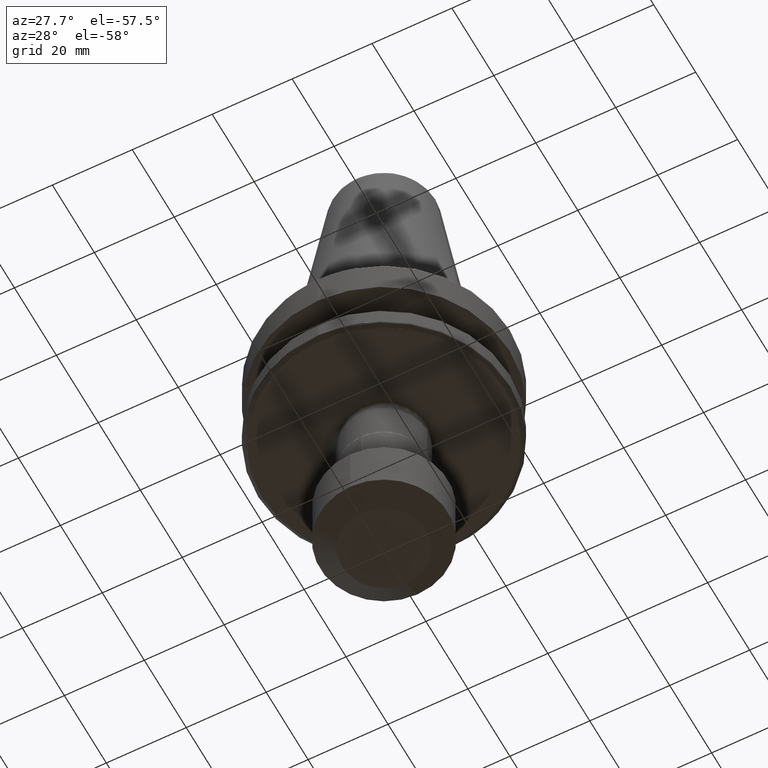
[diagram: clean part render]
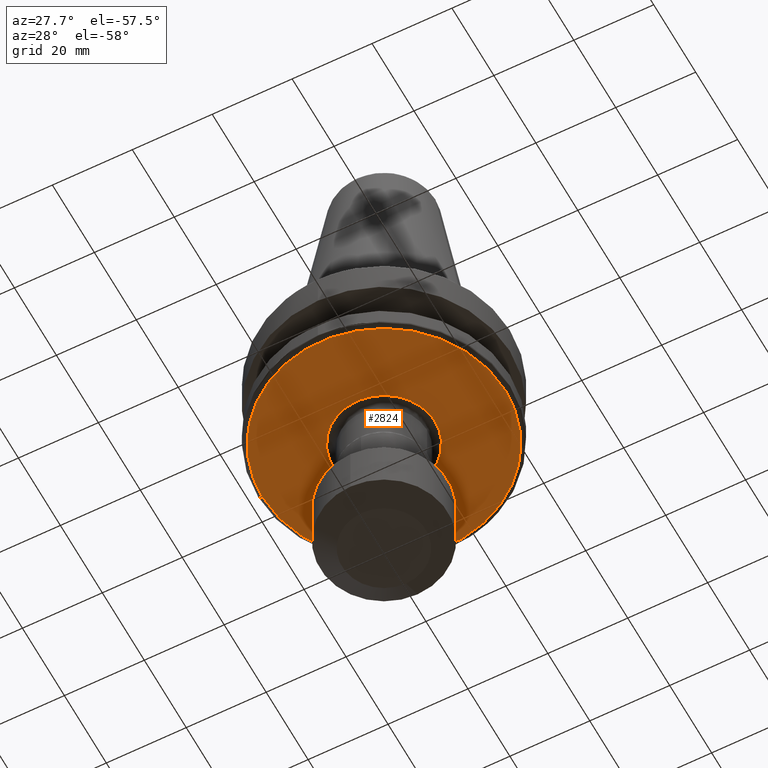
[diagram: same view with one face highlighted and labeled with its STEP entity id]
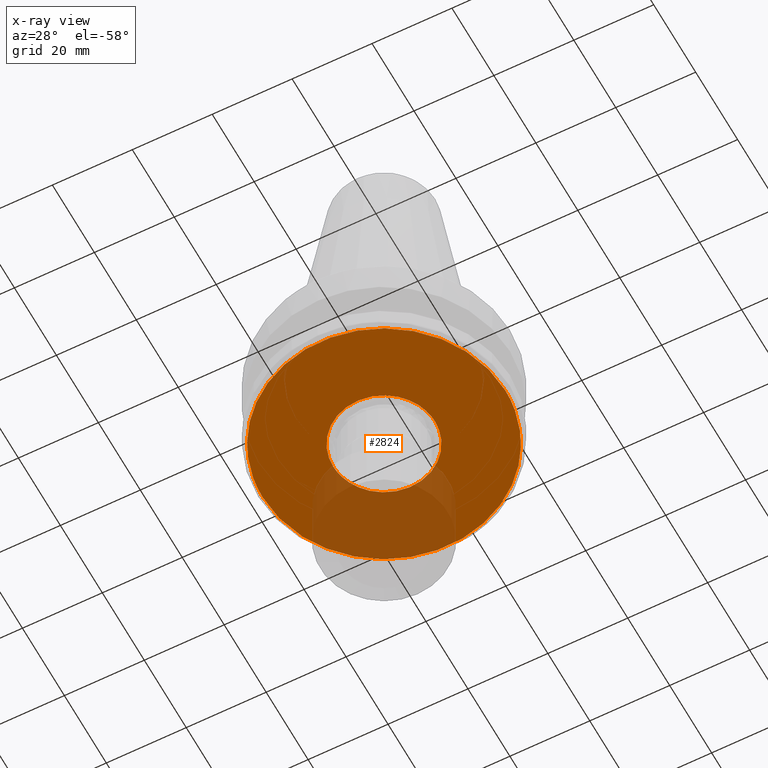
[diagram: x-ray of the same camera — body ghosted, the highlighted face saturated]
A machine part, auxiliary view. The second image highlights one B-rep face of the part: STEP entity #2824.
The next image is the same camera in x-ray: the body ghosted, the highlighted face saturated — about 25% of this face is hidden behind the body in this view.
In plain terms, the highlighted planar face has unit normal (0, 0, -1).
Its self-contained STEP definition (entity closure, byte-faithful):
#1 = CARTESIAN_POINT ( 'NONE',  ( -12.32977599660492100, 3.262242557286067600, -26.99999999999999300 ) ) ;
#6 = CARTESIAN_POINT ( 'NONE',  ( -12.55227789856859900, 2.246864816764769100, -26.99999999999998900 ) ) ;
#9 = CARTESIAN_POINT ( 'NONE',  ( -7.314865708562977400, -29.43924996358139300, -27.00000000000000400 ) ) ;
#16 = CARTESIAN_POINT ( 'NONE',  ( -30.06745157541815800, 4.014863191671530300, -27.00000000000000000 ) ) ;
#17 = CARTESIAN_POINT ( 'NONE',  ( -14.00798787767455200, -26.90636775184092500, -27.00000000000000000 ) ) ;
#23 = CARTESIAN_POINT ( 'NONE',  ( -27.89701390752557600, 11.92717983265423100, -26.99999999999999300 ) ) ;
#24 = CARTESIAN_POINT ( 'NONE',  ( -19.19134097743529600, -23.49476566299169300, -27.00000000000000000 ) ) ;
#26 = CARTESIAN_POINT ( 'NONE',  ( -12.64182355633824000, -1.657361109294325500, -27.00000000000000700 ) ) ;
#31 = CARTESIAN_POINT ( 'NONE',  ( -25.98422421869813400, 15.65220437513010400, -27.00000000000000400 ) ) ;
#32 = CARTESIAN_POINT ( 'NONE',  ( -22.25632787285158500, -20.61134462702642300, -27.00000000000000000 ) ) ;
#34 = CARTESIAN_POINT ( 'NONE',  ( -11.96545752996769000, -4.429517240855598300, -26.99999999999998900 ) ) ;
#39 = CARTESIAN_POINT ( 'NONE',  ( -22.88540125800991700, 19.91349571467543800, -27.00000000000000000 ) ) ;
#40 = CARTESIAN_POINT ( 'NONE',  ( -25.81104396033812500, -15.93634838799716600, -27.00000000000000700 ) ) ;
#42 = CARTESIAN_POINT ( 'NONE',  ( -4.376057882890410000, 11.97567682924114700, -27.00000000000000000 ) ) ;
#43 = CARTESIAN_POINT ( 'NONE',  ( -10.25292004097483700, -7.578998863682524100, -27.00000000000000400 ) ) ;
#46 = CARTESIAN_POINT ( 'NONE',  ( -4.559783513164583200, 11.90692341074806200, -27.00000000000000000 ) ) ;
#50 = CARTESIAN_POINT ( 'NONE',  ( -19.97247930315361200, 22.83138023056808700, -27.00000000000000000 ) ) ;
#51 = CARTESIAN_POINT ( 'NONE',  ( -27.64383232676977500, -12.51919696687722100, -27.00000000000000400 ) ) ;
#52 = CARTESIAN_POINT ( 'NONE',  ( -7.929838823613415000, -9.988963817548519600, -27.00000000000000700 ) ) ;
#60 = CARTESIAN_POINT ( 'NONE',  ( -14.53295277555866800, 26.62647715423845400, -26.99999999999998600 ) ) ;
#61 = CARTESIAN_POINT ( 'NONE',  ( -29.97105914676813800, -4.687334143257679400, -27.00000000000000000 ) ) ;
#63 = CARTESIAN_POINT ( 'NONE',  ( -5.030186304927819500, -11.71699770991051700, -27.00000000000000700 ) ) ;
#69 = CARTESIAN_POINT ( 'NONE',  ( -7.989465169317333500, 29.26398986221233000, -27.00000000000000400 ) ) ;
#71 = CARTESIAN_POINT ( 'NONE',  ( -1.060798828813558400, -12.71690313664970900, -27.00000000000000000 ) ) ;
#77 = FACE_OUTER_BOUND ( 'NONE', #1599, .T. ) ;
#78 = CARTESIAN_POINT ( 'NONE',  ( 1.577747754947140600, 30.30482653326176000, -27.00000000000000000 ) ) ;
#82 = CARTESIAN_POINT ( 'NONE',  ( 3.763436938339757900, -12.18676905857086900, -26.99999999999999600 ) ) ;
#84 = CARTESIAN_POINT ( 'NONE',  ( -12.61787998400996500, 1.831498131262046600, -26.99999999999999600 ) ) ;
#86 = CARTESIAN_POINT ( 'NONE',  ( -10.19241349833950300, 7.660114474155569100, -26.99999999999998900 ) ) ;
#90 = CARTESIAN_POINT ( 'NONE',  ( 8.954237609605046400, 28.99416497498624100, -26.99999999999999300 ) ) ;
#91 = CARTESIAN_POINT ( 'NONE',  ( 6.901906106309899900, -10.72160800509111500, -27.00000000000000000 ) ) ;
#97 = CARTESIAN_POINT ( 'NONE',  ( 14.79203558219175500, 26.48981554119946200, -27.00000000000000400 ) ) ;
#102 = CARTESIAN_POINT ( 'NONE',  ( 9.715092270122603700, -8.262542522046258500, -27.00000000000000700 ) ) ;
#105 = FACE_BOUND ( 'NONE', #1591, .T. ) ;
#107 = CARTESIAN_POINT ( 'NONE',  ( 19.83908021210594400, 22.94739003378545300, -27.00000000000000700 ) ) ;
#109 = CARTESIAN_POINT ( 'NONE',  ( 11.43841234300686200, -5.632526597064148700, -26.99999999999999300 ) ) ;
#114 = CARTESIAN_POINT ( 'NONE',  ( 23.71392031506312400, 18.91927227091810700, -27.00000000000000400 ) ) ;
#117 = CARTESIAN_POINT ( 'NONE',  ( 12.44675401268814200, -2.796734209976687400, -26.99999999999999300 ) ) ;
#128 = CARTESIAN_POINT ( 'NONE',  ( 25.90851682547564400, 15.77720567674849600, -27.00000000000000000 ) ) ;
#134 = CARTESIAN_POINT ( 'NONE',  ( 28.90261560424337600, 9.213713054814931500, -26.99999999999998200 ) ) ;
#143 = CARTESIAN_POINT ( 'NONE',  ( 0.5308840484537696900, 12.74997709818056200, -27.00000000000000000 ) ) ;
#145 = CARTESIAN_POINT ( 'NONE',  ( 30.05468978818245800, 4.109405016325622400, -27.00000000000000000 ) ) ;
#148 = CARTESIAN_POINT ( 'NONE',  ( 30.06866015639782600, -4.005796829339312900, -27.00000000000000700 ) ) ;
#150 = CARTESIAN_POINT ( 'NONE',  ( -12.59730222495517000, 1.970236039819381900, -27.00000000000000000 ) ) ;
#160 = CARTESIAN_POINT ( 'NONE',  ( 28.46761302127731200, -10.53892102973902900, -26.99999999999999300 ) ) ;
#170 = CARTESIAN_POINT ( 'NONE',  ( 26.02943172749451500, -15.57707268833204500, -27.00000000000000400 ) ) ;
#177 = CARTESIAN_POINT ( 'NONE',  ( 23.47453924231322700, -19.22467896263098900, -27.00000000000000700 ) ) ;
#179 = CARTESIAN_POINT ( 'NONE',  ( -8.225821527503063300, 9.741893564711272500, -27.00000000000000000 ) ) ;
#187 = CARTESIAN_POINT ( 'NONE',  ( 19.99695510746214900, -22.80994345806930900, -27.00000000000000700 ) ) ;
#192 = CARTESIAN_POINT ( 'NONE',  ( 5.030186304933662800, 11.71699770990740000, -27.00000000000000700 ) ) ;
#196 = CARTESIAN_POINT ( 'NONE',  ( 14.72570799564403600, -26.52097213266525300, -27.00000000000000000 ) ) ;
#200 = CARTESIAN_POINT ( 'NONE',  ( 12.63950962174223700, 1.674920348349479200, -26.99999999999999600 ) ) ;
#206 = CARTESIAN_POINT ( 'NONE',  ( 8.509475416675760700, -29.11919875571356500, -27.00000000000000000 ) ) ;
#210 = CARTESIAN_POINT ( 'NONE',  ( 11.72561000113571200, 5.013064896790378800, -26.99999999999999300 ) ) ;
#214 = CARTESIAN_POINT ( 'NONE',  ( -9.715092270126247000, 8.262542522041364600, -26.99999999999998900 ) ) ;
#220 = CARTESIAN_POINT ( 'NONE',  ( -0.6317819115075545800, -30.33432603010909300, -26.99999999999999300 ) ) ;
#222 = CARTESIAN_POINT ( 'NONE',  ( -12.44675401268768100, 2.796734209978307500, -27.00000000000000000 ) ) ;
#227 = CARTESIAN_POINT ( 'NONE',  ( -30.33431456895414200, 0.0000000000000000000, -27.00000000001087500 ) ) ;
#228 = CARTESIAN_POINT ( 'NONE',  ( -8.065230255926891800, -29.24900761299818100, -26.99999999999999600 ) ) ;
#238 = CARTESIAN_POINT ( 'NONE',  ( -29.77054002068192800, 5.908407303601480400, -27.00000000000000400 ) ) ;
#239 = CARTESIAN_POINT ( 'NONE',  ( -14.21033856243216100, -26.80004120175012600, -27.00000000000000700 ) ) ;
#245 = CARTESIAN_POINT ( 'NONE',  ( -27.42994211300608100, 12.95336298930373600, -26.99999999999999300 ) ) ;
#246 = CARTESIAN_POINT ( 'NONE',  ( -19.75880468303768500, -23.01671043274862400, -26.99999999999999600 ) ) ;
#248 = CARTESIAN_POINT ( 'NONE',  ( -12.63849760132270300, -1.682548216561540200, -27.00000000000000400 ) ) ;
#256 = CARTESIAN_POINT ( 'NONE',  ( 6.748126415391675800, 10.82274688855738800, -27.00000000000000700 ) ) ;
#258 = CARTESIAN_POINT ( 'NONE',  ( -25.93968945698734500, 15.72590437763368100, -27.00000000000000700 ) ) ;
#259 = CARTESIAN_POINT ( 'NONE',  ( -23.14263354255662400, -19.62296503528905200, -27.00000000000000700 ) ) ;
#260 = CARTESIAN_POINT ( 'NONE',  ( -11.59627811815114700, -5.301263511727810900, -26.99999999999998600 ) ) ;
#264 = CARTESIAN_POINT ( 'NONE',  ( -22.43177005379728000, 20.42042119967143100, -26.99999999999999300 ) ) ;
#265 = CARTESIAN_POINT ( 'NONE',  ( -25.89161949666177900, -15.80492250809890600, -27.00000000000000000 ) ) ;
#267 = CARTESIAN_POINT ( 'NONE',  ( -10.21516810748599000, -7.629743058841511600, -26.99999999999999300 ) ) ;
#273 = CARTESIAN_POINT ( 'NONE',  ( -18.86604382632783200, 23.76561622384933500, -26.99999999999999600 ) ) ;
#274 = CARTESIAN_POINT ( 'NONE',  ( -28.66941225225468100, -9.928030280955662000, -26.99999999999999600 ) ) ;
#277 = CARTESIAN_POINT ( 'NONE',  ( -7.454081524845139300, -10.34421016014714600, -26.99999999999999600 ) ) ;
#283 = CARTESIAN_POINT ( 'NONE',  ( -14.34153269953272400, 26.73007095302005000, -26.99999999999999600 ) ) ;
#284 = CARTESIAN_POINT ( 'NONE',  ( -30.04331833585420600, -4.192089910118922600, -26.99999999999999600 ) ) ;
#286 = CARTESIAN_POINT ( 'NONE',  ( -4.736993760894399900, -11.83753961281427700, -26.99999999999999600 ) ) ;
#295 = CARTESIAN_POINT ( 'NONE',  ( -7.616483056162604000, 29.36265820173973800, -27.00000000000000400 ) ) ;
#298 = CARTESIAN_POINT ( 'NONE',  ( 9.503416960203553600, 8.520611400945936600, -26.99999999999999300 ) ) ;
#299 = CARTESIAN_POINT ( 'NONE',  ( 0.2654420242143315500, -12.75001144950159000, -27.00000000000000400 ) ) ;
#305 = CARTESIAN_POINT ( 'NONE',  ( 3.149449800102117600, 30.17080025199756200, -27.00000000000000000 ) ) ;
#309 = CARTESIAN_POINT ( 'NONE',  ( 4.376057882901413600, -11.97567682923659800, -27.00000000000000000 ) ) ;
#313 = CARTESIAN_POINT ( 'NONE',  ( -11.45572298888662200, 5.597233873870412600, -27.00000000000000000 ) ) ;
#315 = CARTESIAN_POINT ( 'NONE',  ( 10.48404356790058100, 28.46572494217410600, -27.00000000000000400 ) ) ;
#318 = CARTESIAN_POINT ( 'NONE',  ( 7.158217609935151800, -10.55112080457702300, -26.99999999999999600 ) ) ;
#328 = CARTESIAN_POINT ( 'NONE',  ( 16.42101489034520500, 25.50828098564695500, -27.00000000000000000 ) ) ;
#330 = CARTESIAN_POINT ( 'NONE',  ( 10.08157849122994100, -7.805760291179501200, -26.99999999999999600 ) ) ;
#336 = CARTESIAN_POINT ( 'NONE',  ( -2.625410106458053500, 12.47747553053547000, -26.99999999999998900 ) ) ;
#337 = CARTESIAN_POINT ( 'NONE',  ( 19.92029392028544900, 22.87692387019318500, -27.00000000000000700 ) ) ;
#339 = CARTESIAN_POINT ( 'NONE',  ( 11.45572298888662200, -5.597233873870412600, -27.00000000000000700 ) ) ;
#344 = CARTESIAN_POINT ( 'NONE',  ( 24.13073339502241100, 18.38166501040785400, -27.00000000000001100 ) ) ;
#351 = CARTESIAN_POINT ( 'NONE',  ( 12.59730222495537300, -1.970236039818666900, -27.00000000000000000 ) ) ;
#356 = CARTESIAN_POINT ( 'NONE',  ( 26.51634769473828600, 14.74575627376442500, -26.99999999999999300 ) ) ;
#357 = CARTESIAN_POINT ( 'NONE',  ( -12.63599280844750600, 1.701251021226191800, -27.00000000000000000 ) ) ;
#366 = CARTESIAN_POINT ( 'NONE',  ( 29.06775511035845100, 8.674176925819834200, -26.99999999999998900 ) ) ;
#368 = CARTESIAN_POINT ( 'NONE',  ( -1.323701459803303700, 12.68179503765681700, -27.00000000000000000 ) ) ;
#369 = CARTESIAN_POINT ( 'NONE',  ( 30.30075891712977700, -1.682853304907961000, -27.00000000000000000 ) ) ;
#373 = CARTESIAN_POINT ( 'NONE',  ( 10.21516810748639900, 7.629743058840864100, -27.00000000000000000 ) ) ;
#377 = CARTESIAN_POINT ( 'NONE',  ( 30.06269572678717900, 4.050319365660559600, -27.00000000000001400 ) ) ;
#380 = CARTESIAN_POINT ( 'NONE',  ( 29.96460452612089000, -4.782885916291442100, -26.99999999999999300 ) ) ;
#387 = CARTESIAN_POINT ( 'NONE',  ( 27.58935865968530300, -12.61273155092417600, -26.99999999999999600 ) ) ;
#397 = CARTESIAN_POINT ( 'NONE',  ( 25.95401150601914300, -15.70225232312775400, -26.99999999999999300 ) ) ;
#402 = CARTESIAN_POINT ( 'NONE',  ( -2.882470304350867700, 12.42059590815242300, -26.99999999999999300 ) ) ;
#409 = CARTESIAN_POINT ( 'NONE',  ( 22.58410214244001300, -20.25236861696162500, -26.99999999999999300 ) ) ;
#412 = CARTESIAN_POINT ( 'NONE',  ( -12.71238937923618900, 1.130996580326635500, -27.00000000000000000 ) ) ;
#421 = CARTESIAN_POINT ( 'NONE',  ( 19.51979269850750500, -23.22646600561542500, -26.99999999999999600 ) ) ;
#433 = CARTESIAN_POINT ( 'NONE',  ( 14.40417093811788100, -26.69636274031201100, -27.00000000000000000 ) ) ;
#437 = CARTESIAN_POINT ( 'NONE',  ( 12.59462538776614900, 2.010226977413950500, -26.99999999999999600 ) ) ;
#444 = CARTESIAN_POINT ( 'NONE',  ( 7.765785046583760100, -29.32352643386734300, -27.00000000000000400 ) ) ;
#447 = CARTESIAN_POINT ( 'NONE',  ( 11.52926014702575400, 5.444469015916532800, -27.00000000000000700 ) ) ;
#448 = CARTESIAN_POINT ( 'NONE',  ( 10.40898676184678000, 7.364365957677327900, -26.99999999999999300 ) ) ;
#453 = CARTESIAN_POINT ( 'NONE',  ( -2.678387280277451300, -30.21875626471113900, -27.00000000000000000 ) ) ;
#455 = CARTESIAN_POINT ( 'NONE',  ( -12.23365243790887500, 3.591706551523592000, -27.00000000000000000 ) ) ;
#465 = CARTESIAN_POINT ( 'NONE',  ( -9.976580335066549000, -28.64972546898616600, -27.00000000000000400 ) ) ;
#476 = CARTESIAN_POINT ( 'NONE',  ( -29.30178970370095500, 7.851153117245299700, -27.00000000000000400 ) ) ;
#477 = CARTESIAN_POINT ( 'NONE',  ( -15.55448809825449700, -26.05439568662755100, -27.00000000000000000 ) ) ;
#486 = CARTESIAN_POINT ( 'NONE',  ( -27.30793454930200100, 13.20789838397924100, -26.99999999999999300 ) ) ;
#487 = CARTESIAN_POINT ( 'NONE',  ( -19.89252192534429800, -22.90107864450404000, -26.99999999999999600 ) ) ;
#490 = CARTESIAN_POINT ( 'NONE',  ( -12.51307230566526300, -2.483229068973258300, -27.00000000000000700 ) ) ;
#497 = CARTESIAN_POINT ( 'NONE',  ( -25.26859551766541400, 16.79569564038579800, -27.00000000000000700 ) ) ;
#498 = CARTESIAN_POINT ( 'NONE',  ( -23.99290541595047400, -18.56180435314944800, -27.00000000000000400 ) ) ;
#500 = CARTESIAN_POINT ( 'NONE',  ( -11.49516315404966300, -5.515848317203623500, -27.00000000000000400 ) ) ;
#505 = CARTESIAN_POINT ( 'NONE',  ( -7.210956384142720700, 10.51513559435146500, -26.99999999999998600 ) ) ;
#507 = CARTESIAN_POINT ( 'NONE',  ( -22.32228039465973900, 20.53989862152639700, -27.00000000000000400 ) ) ;
#508 = CARTESIAN_POINT ( 'NONE',  ( -26.16641375509689700, -15.35279778011593500, -27.00000000000000400 ) ) ;
#509 = CARTESIAN_POINT ( 'NONE',  ( -9.931698145096646600, -8.007766201483640600, -27.00000000000000400 ) ) ;
#516 = CARTESIAN_POINT ( 'NONE',  ( -17.67708122854763900, 24.65211168048978900, -26.99999999999998900 ) ) ;
#517 = CARTESIAN_POINT ( 'NONE',  ( -29.01363841858709900, -8.854384036396439200, -26.99999999999999600 ) ) ;
#519 = CARTESIAN_POINT ( 'NONE',  ( -4.193187282698271000, 12.04198172840952500, -26.99999999999999600 ) ) ;
#520 = CARTESIAN_POINT ( 'NONE',  ( -7.310384583437040900, -10.44626747461959000, -26.99999999999999300 ) ) ;
#524 = CARTESIAN_POINT ( 'NONE',  ( -7.158217609934904000, 10.55112080457774400, -26.99999999999999600 ) ) ;
#527 = CARTESIAN_POINT ( 'NONE',  ( -12.93237356969733300, 27.45111927661605500, -27.00000000000000700 ) ) ;
#528 = CARTESIAN_POINT ( 'NONE',  ( -30.05950157680395000, -4.073955391500646800, -27.00000000000001100 ) ) ;
#529 = CARTESIAN_POINT ( 'NONE',  ( -4.377125792278679500, -11.97793031514609700, -27.00000000000000000 ) ) ;
#535 = CARTESIAN_POINT ( 'NONE',  ( -6.859315343740664900, 29.55527189391064600, -27.00000000000000400 ) ) ;
#539 = CARTESIAN_POINT ( 'NONE',  ( 1.059535312406839400, -12.70660621034599400, -27.00000000000001100 ) ) ;
#545 = CARTESIAN_POINT ( 'NONE',  ( -7.055966075700705900, 10.61977545597380300, -27.00000000000000000 ) ) ;
#548 = CARTESIAN_POINT ( 'NONE',  ( 3.621533451799760600, 30.11776097216621300, -26.99999999999999600 ) ) ;
#553 = CARTESIAN_POINT ( 'NONE',  ( 4.559783513162887700, -11.90692341074864500, -27.00000000000000400 ) ) ;
#560 = CARTESIAN_POINT ( 'NONE',  ( 10.84501639576673400, 28.32952758604733700, -27.00000000000000000 ) ) ;
#564 = CARTESIAN_POINT ( 'NONE',  ( 7.455106844063468700, -10.34604124863696000, -26.99999999999999600 ) ) ;
#572 = CARTESIAN_POINT ( 'NONE',  ( 17.06084698435738600, 25.08201532889678400, -26.99999999999999300 ) ) ;
#576 = CARTESIAN_POINT ( 'NONE',  ( 10.16634897097401000, -7.694674792744164500, -27.00000000000000700 ) ) ;
#582 = CARTESIAN_POINT ( 'NONE',  ( 20.95299813298871100, 21.94674450176455900, -27.00000000000000000 ) ) ;
#585 = CARTESIAN_POINT ( 'NONE',  ( 11.83535525243266500, -4.766251354434490200, -26.99999999999999300 ) ) ;
#593 = CARTESIAN_POINT ( 'NONE',  ( 24.22850819644297700, 18.25242520543470800, -27.00000000000000400 ) ) ;
#596 = CARTESIAN_POINT ( 'NONE',  ( 12.62768526250281400, -1.762023296961996400, -27.00000000000000400 ) ) ;
#603 = CARTESIAN_POINT ( 'NONE',  ( 27.08537981856266800, 13.65930904866499100, -26.99999999999999600 ) ) ;
#613 = CARTESIAN_POINT ( 'NONE',  ( 29.10583706064811700, 8.545234707008008400, -27.00000000000000400 ) ) ;
#625 = CARTESIAN_POINT ( 'NONE',  ( 30.24483282093721900, 2.690588715207872900, -27.00000000000000400 ) ) ;
#629 = CARTESIAN_POINT ( 'NONE',  ( 29.47033861247848200, -7.206134666321441200, -27.00000000000000400 ) ) ;
#637 = CARTESIAN_POINT ( 'NONE',  ( 27.34883660898689000, -13.12314260328118600, -27.00000000000000400 ) ) ;
#647 = CARTESIAN_POINT ( 'NONE',  ( 25.66765165096750300, -16.17361856585520700, -27.00000000000000700 ) ) ;
#656 = CARTESIAN_POINT ( 'NONE',  ( 22.36612433062540700, -20.49214719188240600, -27.00000000000000000 ) ) ;
#667 = CARTESIAN_POINT ( 'NONE',  ( 18.07767848224682400, -24.36204342591719700, -27.00000000000000000 ) ) ;
#678 = CARTESIAN_POINT ( 'NONE',  ( 13.74248248551594300, -27.04957753096245200, -26.99999999999999600 ) ) ;
#684 = CARTESIAN_POINT ( 'NONE',  ( 12.38688387496243900, 3.028727111366892500, -26.99999999999999600 ) ) ;
#685 = CARTESIAN_POINT ( 'NONE',  ( 4.854513298289576000, 11.78983545470785900, -26.99999999999998900 ) ) ;
#692 = CARTESIAN_POINT ( 'NONE',  ( 7.542857310447415000, -29.38166094418209400, -27.00000000000000400 ) ) ;
#694 = CARTESIAN_POINT ( 'NONE',  ( -6.901906106309219500, 10.72160800509313800, -27.00000000000001400 ) ) ;
#696 = CARTESIAN_POINT ( 'NONE',  ( 11.48042415547382500, 5.546391564004614400, -27.00000000000000000 ) ) ;
#700 = CARTESIAN_POINT ( 'NONE',  ( -12.74999999870138400, 0.5668372883327821300, -27.00000000000000400 ) ) ;
#703 = CARTESIAN_POINT ( 'NONE',  ( -3.463349227925850600, -30.13636985357446800, -27.00000000000000400 ) ) ;
#710 = CARTESIAN_POINT ( 'NONE',  ( -30.20288824879279200, 2.856033720249536100, -27.00000000000000000 ) ) ;
#711 = CARTESIAN_POINT ( 'NONE',  ( -10.70073321115319600, -28.38434312204577700, -27.00000000000000000 ) ) ;
#718 = CARTESIAN_POINT ( 'NONE',  ( -29.16730693260397400, 8.333234666992172600, -27.00000000000000000 ) ) ;
#719 = CARTESIAN_POINT ( 'NONE',  ( -16.84852800068777900, -25.22569241740195900, -27.00000000000001100 ) ) ;
#720 = CARTESIAN_POINT ( 'NONE',  ( -5.945688448084181800, 11.27896332765422100, -27.00000000000000700 ) ) ;
#722 = CARTESIAN_POINT ( 'NONE',  ( -12.74999999167744700, 0.0000000000000000000, -26.99999999980891000 ) ) ;
#727 = CARTESIAN_POINT ( 'NONE',  ( -27.27857740594745900, 13.26838397859086200, -26.99999999999999600 ) ) ;
#729 = CARTESIAN_POINT ( 'NONE',  ( -20.35475882443830300, -22.49776777156672100, -27.00000000000000400 ) ) ;
#733 = CARTESIAN_POINT ( 'NONE',  ( -12.31602886754500200, -3.299891699813715600, -27.00000000000000400 ) ) ;
#735 = CARTESIAN_POINT ( 'NONE',  ( -12.63449328957882000, 1.712355559120410700, -26.99999999999999600 ) ) ;
#743 = CARTESIAN_POINT ( 'NONE',  ( -24.52430133183741000, 17.85373610037130700, -27.00000000000000000 ) ) ;
#744 = CARTESIAN_POINT ( 'NONE',  ( -24.18944583506083400, -18.30416128124332800, -27.00000000000000000 ) ) ;
#747 = CARTESIAN_POINT ( 'NONE',  ( -11.47057015606922500, -5.566743088026494300, -26.99999999999999300 ) ) ;
#753 = CARTESIAN_POINT ( 'NONE',  ( -21.90998207721782600, 20.98614834865254200, -27.00000000000000400 ) ) ;
#754 = CARTESIAN_POINT ( 'NONE',  ( -26.89983123158069500, -14.02375570368901900, -26.99999999999999600 ) ) ;
#756 = CARTESIAN_POINT ( 'NONE',  ( -8.958555870649107100, -9.077273619004842000, -26.99999999999999600 ) ) ;
#764 = CARTESIAN_POINT ( 'NONE',  ( -17.38830577274043400, 24.85595788074057900, -27.00000000000000000 ) ) ;
#765 = CARTESIAN_POINT ( 'NONE',  ( -29.09446477738759300, -8.583937720205742700, -27.00000000000000400 ) ) ;
#767 = CARTESIAN_POINT ( 'NONE',  ( -6.748126415379433100, -10.82274688856391800, -27.00000000000000000 ) ) ;
#769 = CARTESIAN_POINT ( 'NONE',  ( 4.377125792271233900, 11.97793031514965100, -26.99999999999998900 ) ) ;
#773 = CARTESIAN_POINT ( 'NONE',  ( -11.47984612026657400, 28.07888706727152000, -26.99999999999999300 ) ) ;
#774 = CARTESIAN_POINT ( 'NONE',  ( -30.06447116071621300, -4.037117130667981600, -27.00000000000000400 ) ) ;
#776 = CARTESIAN_POINT ( 'NONE',  ( -3.638794699023246700, -12.22042522863149100, -27.00000000000001100 ) ) ;
#782 = CARTESIAN_POINT ( 'NONE',  ( -4.862942288895992800, 29.94488303860524400, -27.00000000000000400 ) ) ;
#785 = CARTESIAN_POINT ( 'NONE',  ( 1.456880610818443600, -12.66717006240244100, -27.00000000000000700 ) ) ;
#793 = CARTESIAN_POINT ( 'NONE',  ( 5.326782175470290400, 29.87450980411302800, -27.00000000000000000 ) ) ;
#795 = CARTESIAN_POINT ( 'NONE',  ( 5.205100309739044000, -11.64398894795410300, -27.00000000000000400 ) ) ;
#802 = CARTESIAN_POINT ( 'NONE',  ( 11.55153968862751200, 28.05525649177704800, -26.99999999999999600 ) ) ;
#805 = CARTESIAN_POINT ( 'NONE',  ( 8.066326051148042400, -9.875307661265397400, -27.00000000000000000 ) ) ;
#808 = CARTESIAN_POINT ( 'NONE',  ( -6.537654168114306300, 10.95117129054836300, -26.99999999999999600 ) ) ;
#810 = CARTESIAN_POINT ( 'NONE',  ( -12.74999999167744700, 0.0000000000000000000, -26.99999999980891000 ) ) ;
#812 = CARTESIAN_POINT ( 'NONE',  ( 17.21192152713432900, 24.97842436863043100, -27.00000000000001100 ) ) ;
#816 = CARTESIAN_POINT ( 'NONE',  ( 10.19241349833951000, -7.660114474155570000, -26.99999999999999300 ) ) ;
#822 = CARTESIAN_POINT ( 'NONE',  ( 21.95360301435557200, 20.93423755944912700, -27.00000000000000700 ) ) ;
#825 = CARTESIAN_POINT ( 'NONE',  ( 12.14820668627430700, -3.872741989905385200, -27.00000000000000000 ) ) ;
#830 = B_SPLINE_CURVE_WITH_KNOTS ( 'NONE', 3,
 ( #722, #2113, #969, #2516, #1188, #2715, #1426, #26, #1665, #248, #1905, #490, #2121, #733, #2322, #976, #2524, #1201, #2725, #1436, #34, #1680, #260, #1913, #500, #2131, #747, #2332, #982, #2532, #1213, #2733, #1448, #43, #1692, #267, #1922, #509, #2142, #756, #2338, #990, #2542, #1220, #2741, #1458, #52, #1701, #277, #1932, #520, #2149, #767, #2345, #1002, #2553, #1232, #2753, #1468, #63, #1712, #286, #1942, #529, #2157, #776, #2357, #1012, #2563, #1242, #2764, #1477, #71, #1723, #299, #1953, #539, #2168, #785, #2366, #1023, #2574, #1253, #2776, #1488, #82, #1731, #309, #1962, #553, #2176, #795, #2376, #1033, #2583, #1262, #2785, #1498, #91, #1741, #318, #1972, #564, #2185, #805, #2386, #1041, #2593, #1274, #2798, #1508, #102, #1751, #330, #1982, #576, #2194, #816, #2398, #1052, #2605, #1285, #2807, #1519, #109, #1762, #339, #1989, #585, #2206, #825, #2405, #1063, #2614, #1293, #2815, #1529, #117, #1771, #351, #1996, #596, #2212, #839, #2416, #1073, #2620, #1303 ),
 .UNSPECIFIED., .F., .F.,
 ( 4, 1, 1, 1, 1, 1, 2, 2, 1, 1, 1, 1, 1, 2, 2, 1, 1, 1, 1, 1, 2, 2, 1, 1, 1, 1, 1, 2, 2, 1, 1, 1, 1, 2, 2, 1, 1, 2, 2, 1, 1, 2, 2, 1, 1, 2, 2, 1, 2, 2, 2, 2, 2, 1, 2, 2, 1, 2, 2, 1, 1, 2, 2, 1, 1, 2, 2, 1, 1, 2, 2, 1, 1, 1, 2, 2, 1, 1, 1, 1, 1, 2, 2, 1, 1, 1, 1, 1, 2, 2, 1, 1, 1, 1, 1, 2, 2, 1, 1, 1, 1, 1, 2, 2, 4 ),
 ( 0.0000000000000000000, 0.03124999999999782100, 0.04687499999999671800, 0.05468749999999615600, 0.05859374999999587100, 0.06054687499999572600, 0.06152343749999564900, 0.06249999999999557300, 0.09374999999999304700, 0.1093749999999917700, 0.1171874999999911200, 0.1210937499999908000, 0.1230468749999906600, 0.1240234374999905900, 0.1249999999999905200, 0.1562499999999887900, 0.1718749999999878200, 0.1796874999999873200, 0.1835937499999870900, 0.1855468749999869500, 0.1865234374999869000, 0.1874999999999868700, 0.2187499999999850700, 0.2343749999999841500, 0.2421874999999837400, 0.2460937499999834900, 0.2480468749999833200, 0.2490234374999832600, 0.2499999999999832400, 0.2812499999999822900, 0.2968749999999818500, 0.3046874999999816300, 0.3085937499999815100, 0.3105468749999814600, 0.3124999999999813500, 0.3281249999999810200, 0.3359374999999807400, 0.3398437499999806300, 0.3437499999999805200, 0.3593749999999801300, 0.3671874999999799000, 0.3710937499999797900, 0.3749999999999797400, 0.3906249999999792900, 0.3984374999999791300, 0.4023437499999789600, 0.4062499999999787900, 0.4218749999999781300, 0.4296874999999778000, 0.4374999999999774600, 0.4531249999999769100, 0.4687499999999763000, 0.4999999999999751300, 0.5156249999999745800, 0.5234374999999742400, 0.5312499999999739100, 0.5468749999999734700, 0.5546874999999731300, 0.5624999999999728000, 0.5781249999999722400, 0.5859374999999719100, 0.5898437499999718000, 0.5937499999999715800, 0.6093749999999710200, 0.6171874999999708000, 0.6210937499999708000, 0.6249999999999706900, 0.6406249999999704700, 0.6484374999999703600, 0.6523437499999702500, 0.6562499999999702500, 0.6718749999999701400, 0.6796874999999701400, 0.6835937499999702500, 0.6855468749999702500, 0.6874999999999703600, 0.7187499999999718000, 0.7343749999999724700, 0.7421874999999728000, 0.7460937499999730200, 0.7480468749999731300, 0.7490234374999732400, 0.7499999999999732400, 0.7812499999999753500, 0.7968749999999765700, 0.8046874999999771300, 0.8085937499999773500, 0.8105468749999774600, 0.8115234374999774600, 0.8124999999999775700, 0.8437499999999814600, 0.8593749999999834600, 0.8671874999999844600, 0.8710937499999850100, 0.8730468749999852300, 0.8740234374999853500, 0.8749999999999854600, 0.9062499999999886800, 0.9218749999999902300, 0.9296874999999910100, 0.9335937499999914500, 0.9355468749999915600, 0.9365234374999917800, 0.9374999999999919000, 1.000000000000000000 ),
 .UNSPECIFIED. ) ;
#835 = CARTESIAN_POINT ( 'NONE',  ( 24.56329777486265800, 17.80614134566354100, -27.00000000000000000 ) ) ;
#839 = CARTESIAN_POINT ( 'NONE',  ( 12.63449328957884500, -1.712355559120352800, -27.00000000000001100 ) ) ;
#845 = CARTESIAN_POINT ( 'NONE',  ( 27.22183174186323400, 13.38446627063728700, -26.99999999999999600 ) ) ;
#852 = CARTESIAN_POINT ( 'NONE',  ( -6.217246204607694600, 11.13414668524155200, -26.99999999999999600 ) ) ;
#855 = CARTESIAN_POINT ( 'NONE',  ( 29.11760386127870200, 8.505052381506919400, -27.00000000000000400 ) ) ;
#859 = CARTESIAN_POINT ( 'NONE',  ( 30.33431456895413400, 0.0000000000000000000, -27.00000000001087500 ) ) ;
#860 = PLANE ( 'NONE',  #1929 ) ;
#865 = CARTESIAN_POINT ( 'NONE',  ( 30.33431456895413400, 0.0000000000000000000, -27.00000000001087500 ) ) ;
#872 = CARTESIAN_POINT ( 'NONE',  ( 29.21290319817012800, -8.172701034988232700, -27.00000000000000000 ) ) ;
#887 = CARTESIAN_POINT ( 'NONE',  ( 27.29033024350918200, -13.24419357006739900, -27.00000000000000000 ) ) ;
#895 = CARTESIAN_POINT ( 'NONE',  ( 24.77677519882519200, -17.50396970131359000, -27.00000000000000700 ) ) ;
#904 = CARTESIAN_POINT ( 'NONE',  ( 22.30133716546197000, -20.56263888184952300, -27.00000000000000000 ) ) ;
#916 = CARTESIAN_POINT ( 'NONE',  ( 17.47517895629794900, -24.79510947115678800, -27.00000000000000400 ) ) ;
#920 = CARTESIAN_POINT ( 'NONE',  ( 6.377375950199722300, 11.04165981033083100, -27.00000000000000400 ) ) ;
#927 = CARTESIAN_POINT ( 'NONE',  ( 11.96733973179014200, -27.87676735263309900, -26.99999999999999300 ) ) ;
#931 = CARTESIAN_POINT ( 'NONE',  ( 12.27866116582162300, 3.435077885835726300, -27.00000000000000000 ) ) ;
#937 = CARTESIAN_POINT ( 'NONE',  ( 5.942386583664316800, -29.75817487962507400, -27.00000000000000700 ) ) ;
#940 = CARTESIAN_POINT ( 'NONE',  ( -10.78242830341729400, 6.825724246662291600, -27.00000000000000700 ) ) ;
#942 = CARTESIAN_POINT ( 'NONE',  ( 11.46621410825717300, 5.575713507829998900, -27.00000000000001400 ) ) ;
#948 = CARTESIAN_POINT ( 'NONE',  ( -4.399042581739773400, -30.02020546250106400, -26.99999999999999600 ) ) ;
#949 = CARTESIAN_POINT ( 'NONE',  ( -8.338681112937434700, 9.645192193954210700, -27.00000000000000700 ) ) ;
#955 = CARTESIAN_POINT ( 'NONE',  ( -30.10379419710158900, 3.734255300385878500, -27.00000000000000400 ) ) ;
#956 = CARTESIAN_POINT ( 'NONE',  ( -10.91872159206468700, -28.30119732552531500, -27.00000000000000400 ) ) ;
#957 = CARTESIAN_POINT ( 'NONE',  ( -5.887787986817608400, 11.30930633821998800, -27.00000000000000400 ) ) ;
#966 = CARTESIAN_POINT ( 'NONE',  ( -29.13426461266584200, 8.447802841278750900, -27.00000000000000400 ) ) ;
#967 = CARTESIAN_POINT ( 'NONE',  ( -17.15153278350513600, -25.01992883285474200, -27.00000000000000400 ) ) ;
#969 = CARTESIAN_POINT ( 'NONE',  ( -12.73589601640193300, -0.7072436950700663500, -26.99999999999998600 ) ) ;
#974 = CARTESIAN_POINT ( 'NONE',  ( -27.06198716686539600, 13.71271061828717400, -26.99999999999999600 ) ) ;
#975 = CARTESIAN_POINT ( 'NONE',  ( -21.62447890241096000, -21.27633189444853600, -27.00000000000000400 ) ) ;
#976 = CARTESIAN_POINT ( 'NONE',  ( -12.25949226545522900, -3.502571951804265300, -27.00000000000000000 ) ) ;
#980 = CARTESIAN_POINT ( 'NONE',  ( -24.34126704700000600, 18.10177416173186100, -26.99999999999999300 ) ) ;
#981 = CARTESIAN_POINT ( 'NONE',  ( -24.24896127769130400, -18.22524170751677600, -27.00000000000000700 ) ) ;
#982 = CARTESIAN_POINT ( 'NONE',  ( -11.28339568825450300, -5.950763241493561400, -26.99999999999998900 ) ) ;
#987 = CARTESIAN_POINT ( 'NONE',  ( -20.65294135686598800, 22.22062933405737400, -27.00000000000000400 ) ) ;
#988 = CARTESIAN_POINT ( 'NONE',  ( -27.17660581664635800, -13.47622412874874000, -27.00000000000000700 ) ) ;
#990 = CARTESIAN_POINT ( 'NONE',  ( -8.530135181596914900, -9.476545265724112700, -27.00000000000001100 ) ) ;
#996 = CARTESIAN_POINT ( 'NONE',  ( -12.63178389592081500, 1.732225679400586400, -27.00000000000000700 ) ) ;
#998 = CARTESIAN_POINT ( 'NONE',  ( -3.763436938316959700, 12.18676905858030000, -27.00000000000000700 ) ) ;
#999 = CARTESIAN_POINT ( 'NONE',  ( -17.30231536619174900, 24.91589509519501200, -27.00000000000000000 ) ) ;
#1000 = CARTESIAN_POINT ( 'NONE',  ( -29.11340197906553200, -8.519426238673226200, -26.99999999999999600 ) ) ;
#1002 = CARTESIAN_POINT ( 'NONE',  ( -6.216353273305488300, -11.13208125550854700, -26.99999999999999600 ) ) ;
#1008 = CARTESIAN_POINT ( 'NONE',  ( -11.12962202232437500, 28.21892558962445500, -27.00000000000000400 ) ) ;
#1009 = CARTESIAN_POINT ( 'NONE',  ( -30.33431457484531200, -1.348362406648540000, -26.99999999999999600 ) ) ;
#1012 = CARTESIAN_POINT ( 'NONE',  ( -3.266100255087587700, -12.32527035372027400, -27.00000000000000000 ) ) ;
#1016 = EDGE_CURVE ( 'NONE', #1958, #1273, #2197, .T. ) ;
#1020 = CARTESIAN_POINT ( 'NONE',  ( -4.087986857726307700, 30.05800306055364100, -27.00000000000000700 ) ) ;
#1023 = CARTESIAN_POINT ( 'NONE',  ( 2.238750845524561100, -12.55677098512490800, -27.00000000000000400 ) ) ;
#1028 = CARTESIAN_POINT ( 'NONE',  ( 6.934182917175417200, 29.53186594626507500, -26.99999999999999600 ) ) ;
#1033 = CARTESIAN_POINT ( 'NONE',  ( 5.774999508844152800, -11.36731744719174000, -27.00000000000000000 ) ) ;
#1040 = CARTESIAN_POINT ( 'NONE',  ( 13.33606240972959800, 27.24850159904763200, -27.00000000000000000 ) ) ;
#1041 = CARTESIAN_POINT ( 'NONE',  ( 8.293612508510293000, -9.683971960202800500, -26.99999999999999300 ) ) ;
#1049 = CARTESIAN_POINT ( 'NONE',  ( 17.73709314371285800, 24.61476241317813100, -27.00000000000000400 ) ) ;
#1052 = CARTESIAN_POINT ( 'NONE',  ( 10.78242830341729600, -6.825724246662299600, -27.00000000000000700 ) ) ;
#1060 = CARTESIAN_POINT ( 'NONE',  ( 22.18597426808766200, 20.68705545006184100, -27.00000000000000400 ) ) ;
#1063 = CARTESIAN_POINT ( 'NONE',  ( 12.21763716276490200, -3.645915444247582300, -27.00000000000000400 ) ) ;
#1069 = CARTESIAN_POINT ( 'NONE',  ( 25.46661501852110400, 16.48420604148857300, -26.99999999999999300 ) ) ;
#1073 = CARTESIAN_POINT ( 'NONE',  ( 12.71238937923618900, -1.130996580324718200, -27.00000000000000000 ) ) ;
#1078 = CARTESIAN_POINT ( 'NONE',  ( -8.293612508514964800, 9.683971960199038200, -27.00000000000000400 ) ) ;
#1080 = CARTESIAN_POINT ( 'NONE',  ( 27.25397930140582000, 13.31883775848014500, -27.00000000000001400 ) ) ;
#1093 = CARTESIAN_POINT ( 'NONE',  ( 29.61292853116277600, 6.653480282832998900, -26.99999999999999300 ) ) ;
#1098 = CARTESIAN_POINT ( 'NONE',  ( 30.13927231437376300, -3.441673224234639900, -27.00000000000000400 ) ) ;
#1102 = CARTESIAN_POINT ( 'NONE',  ( -2.238750845517023500, 12.55677098512311600, -27.00000000000000000 ) ) ;
#1107 = CARTESIAN_POINT ( 'NONE',  ( 29.14422054662878000, -8.413441401244345000, -27.00000000000001100 ) ) ;
#1117 = CARTESIAN_POINT ( 'NONE',  ( 27.27320000693080700, -13.27943525741668800, -27.00000000000000400 ) ) ;
#1126 = CARTESIAN_POINT ( 'NONE',  ( 24.39642347149420200, -18.02752664198844100, -27.00000000000000000 ) ) ;
#1136 = CARTESIAN_POINT ( 'NONE',  ( 21.34217322689995600, -21.56847987839473600, -27.00000000000000000 ) ) ;
#1144 = CARTESIAN_POINT ( 'NONE',  ( 17.33031395297199900, -24.89642651871846000, -26.99999999999999600 ) ) ;
#1149 = CARTESIAN_POINT ( 'NONE',  ( -11.83535525243267900, 4.766251354434492900, -27.00000000000000000 ) ) ;
#1151 = CARTESIAN_POINT ( 'NONE',  ( 12.69475940136188200, 1.200371930545258900, -27.00000000000000700 ) ) ;
#1156 = CARTESIAN_POINT ( 'NONE',  ( 11.26985385274989300, -28.16321601847699100, -26.99999999999999300 ) ) ;
#1159 = CARTESIAN_POINT ( 'NONE',  ( 12.25117308326198700, 3.531476759992128000, -26.99999999999999300 ) ) ;
#1163 = CARTESIAN_POINT ( 'NONE',  ( 4.398246003778266000, -30.01418396580196600, -26.99999999999999600 ) ) ;
#1164 = CARTESIAN_POINT ( 'NONE',  ( -9.200260013518649400, 8.847088659685225000, -27.00000000000000000 ) ) ;
#1166 = CARTESIAN_POINT ( 'NONE',  ( 10.99285256770781600, 6.481391852660259200, -26.99999999999999300 ) ) ;
#1172 = CARTESIAN_POINT ( 'NONE',  ( -6.399920150534411400, -29.65443070420466000, -27.00000000000000000 ) ) ;
#1178 = CARTESIAN_POINT ( 'NONE',  ( -30.07557991849505900, 3.953587874263396500, -27.00000000000000400 ) ) ;
#1179 = CARTESIAN_POINT ( 'NONE',  ( -12.38416052602870600, -27.70275857566298000, -27.00000000000000400 ) ) ;
#1185 = CARTESIAN_POINT ( 'NONE',  ( -29.12470593090366200, 8.480702336766166000, -27.00000000000000400 ) ) ;
#1186 = CARTESIAN_POINT ( 'NONE',  ( -17.24315223981065900, -24.95687390976392800, -26.99999999999999600 ) ) ;
#1187 = CARTESIAN_POINT ( 'NONE',  ( -12.23719449882047200, 3.579617419813748500, -27.00000000000001100 ) ) ;
#1188 = CARTESIAN_POINT ( 'NONE',  ( -12.66802060158584600, -1.446552689518278800, -27.00000000000000700 ) ) ;
#1191 = CARTESIAN_POINT ( 'NONE',  ( 7.598441858245776900, 10.23967842771947000, -26.99999999999999600 ) ) ;
#1197 = CARTESIAN_POINT ( 'NONE',  ( -26.34041783757583100, 15.04822240666492300, -27.00000000000000000 ) ) ;
#1199 = CARTESIAN_POINT ( 'NONE',  ( -22.11651100221343200, -20.76146838403661100, -26.99999999999999600 ) ) ;
#1201 = CARTESIAN_POINT ( 'NONE',  ( -12.24560386420416200, -3.550741916545459500, -27.00000000000000000 ) ) ;
#1209 = CARTESIAN_POINT ( 'NONE',  ( 1.850923542561694100, 12.61771574545307400, -27.00000000000001100 ) ) ;
#1210 = CARTESIAN_POINT ( 'NONE',  ( -24.28688989183418900, 18.17467017683263800, -27.00000000000000000 ) ) ;
#1211 = CARTESIAN_POINT ( 'NONE',  ( -24.99221180770831200, -17.20426226634202700, -27.00000000000000000 ) ) ;
#1213 = CARTESIAN_POINT ( 'NONE',  ( -10.61079111092460900, -7.074386585975164000, -27.00000000000000000 ) ) ;
#1218 = CARTESIAN_POINT ( 'NONE',  ( -20.12429761193342200, 22.69782509429153100, -27.00000000000000400 ) ) ;
#1219 = CARTESIAN_POINT ( 'NONE',  ( -27.24113133683772500, -13.34509531758217400, -27.00000000000000700 ) ) ;
#1220 = CARTESIAN_POINT ( 'NONE',  ( -8.425641581278812400, -9.569316318948011700, -27.00000000000000400 ) ) ;
#1230 = CARTESIAN_POINT ( 'NONE',  ( -16.05453526973807500, 25.74928150038099500, -26.99999999999999600 ) ) ;
#1231 = CARTESIAN_POINT ( 'NONE',  ( -29.33458234849704400, -7.761172850338629000, -27.00000000000001100 ) ) ;
#1232 = CARTESIAN_POINT ( 'NONE',  ( -6.055930370674011500, -11.22016755112004700, -27.00000000000000000 ) ) ;
#1238 = CARTESIAN_POINT ( 'NONE',  ( -10.41365577312344600, 28.49751122869681900, -27.00000000000000400 ) ) ;
#1242 = CARTESIAN_POINT ( 'NONE',  ( -2.626302645623817400, -12.47938199116918900, -27.00000000000000400 ) ) ;
#1251 = CARTESIAN_POINT ( 'NONE',  ( -2.523307483323038900, 30.25560341684104800, -26.99999999999999600 ) ) ;
#1253 = CARTESIAN_POINT ( 'NONE',  ( 2.882470304354632300, -12.42059590815332400, -26.99999999999999300 ) ) ;
#1259 = CARTESIAN_POINT ( 'NONE',  ( 7.314865708579915800, 29.43924996357780800, -26.99999999999999600 ) ) ;
#1262 = CARTESIAN_POINT ( 'NONE',  ( 5.945688448084050400, -11.27896332765460800, -27.00000000000000000 ) ) ;
#1268 = CARTESIAN_POINT ( 'NONE',  ( 12.74999999167744700, 0.0000000000000000000, -26.99999999980891000 ) ) ;
#1269 = CARTESIAN_POINT ( 'NONE',  ( 8.958555870651103700, 9.077273619004776300, -26.99999999999999300 ) ) ;
#1271 = CARTESIAN_POINT ( 'NONE',  ( 14.00798787766945000, 26.90636775183891100, -26.99999999999999600 ) ) ;
#1273 = VERTEX_POINT ( 'NONE', #1570 ) ;
#1274 = CARTESIAN_POINT ( 'NONE',  ( 8.362502943837634800, -9.624541353398489800, -27.00000000000000400 ) ) ;
#1282 = CARTESIAN_POINT ( 'NONE',  ( 19.19134097740151600, 23.49476566301233000, -26.99999999999999600 ) ) ;
#1285 = CARTESIAN_POINT ( 'NONE',  ( 11.30182783151262300, -5.903354076801096400, -27.00000000000000000 ) ) ;
#1290 = CARTESIAN_POINT ( 'NONE',  ( 22.25632787285279300, 20.61134462702488400, -27.00000000000000700 ) ) ;
#1293 = CARTESIAN_POINT ( 'NONE',  ( 12.23365243790887800, -3.591706551523585800, -27.00000000000000400 ) ) ;
#1300 = CARTESIAN_POINT ( 'NONE',  ( 25.81104396034922000, 15.93634838798280900, -27.00000000000000400 ) ) ;
#1303 = CARTESIAN_POINT ( 'NONE',  ( 12.74999999167744700, 0.0000000000000000000, -26.99999999980891000 ) ) ;
#1309 = CARTESIAN_POINT ( 'NONE',  ( 27.64383232678358100, 12.51919696684281500, -27.00000000000000400 ) ) ;
#1321 = CARTESIAN_POINT ( 'NONE',  ( 29.97105914677813100, 4.687334143214573400, -26.99999999999998900 ) ) ;
#1323 = CARTESIAN_POINT ( 'NONE',  ( 30.08513760094985700, -3.880486919455841600, -26.99999999999998900 ) ) ;
#1332 = CARTESIAN_POINT ( 'NONE',  ( 29.12761359701627100, -8.470707606926440600, -26.99999999999999300 ) ) ;
#1342 = CARTESIAN_POINT ( 'NONE',  ( 26.74048878057639600, -14.33527943315245100, -26.99999999999999600 ) ) ;
#1347 = B_SPLINE_CURVE_WITH_KNOTS ( 'NONE', 3,
 ( #1836, #2269, #2474, #1151, #2682, #1382, #2877, #1623, #200, #1859, #437, #2081, #684, #2280, #931, #2481, #1159, #2689, #1390, #2888, #1632, #210, #1870, #447, #2089, #696, #2291, #942, #2492, #1166, #2253, #448, #1816, #1358, #2653, #373, #2894, #2072, #298, #1269, #2404, #2814, #2778, #2696, #2282, #2426, #2588, #1191, #2259, #2504, #2876, #2601, #256, #920, #1806, #2610, #2412, #2748, #2489, #192, #685, #2251, #1686, #769, #2889, #2020, #2258, #2356, #2278, #2732, #2164, #1209, #2797, #143, #2840, #2878, #2759, #368, #2697, #1549, #1102, #336, #402, #2665, #2529, #998, #519, #42, #2011, #46, #1367, #2095, #2599, #1690, #957, #720, #852, #808, #694, #545, #524, #505, #1814, #2396, #2720, #179, #1078, #949, #1389, #1866, #1164, #214, #1845, #2088, #2331, #2266, #2248, #86, #2093, #940, #2298, #2490, #2897, #1629, #2268, #2276, #313, #2126, #1149, #2189, #1672, #1486, #2389, #1844, #455, #1187, #1, #222, #6, #150, #84, #2548, #996, #735, #357, #412, #700, #1526 ),
 .UNSPECIFIED., .F., .F.,
 ( 4, 1, 1, 1, 1, 1, 2, 2, 1, 1, 1, 1, 1, 2, 2, 1, 1, 1, 1, 1, 2, 2, 1, 1, 1, 1, 1, 2, 2, 1, 1, 1, 1, 2, 2, 1, 1, 2, 2, 1, 1, 2, 2, 1, 1, 2, 2, 1, 2, 2, 2, 2, 2, 1, 2, 2, 1, 2, 2, 1, 1, 2, 2, 1, 1, 2, 2, 1, 1, 2, 2, 1, 1, 1, 2, 2, 1, 1, 1, 1, 1, 2, 2, 1, 1, 1, 1, 1, 2, 2, 1, 1, 1, 1, 1, 2, 2, 1, 1, 1, 1, 1, 2, 2, 4 ),
 ( 0.0000000000000000000, 0.03125000000000056200, 0.04687500000000083300, 0.05468750000000097800, 0.05859375000000104800, 0.06054687500000106200, 0.06152343750000106200, 0.06250000000000106900, 0.09375000000000065200, 0.1093750000000004900, 0.1171875000000003900, 0.1210937500000003500, 0.1230468750000003200, 0.1240234375000003500, 0.1250000000000003600, 0.1562500000000008900, 0.1718750000000011400, 0.1796875000000012800, 0.1835937500000013600, 0.1855468750000013900, 0.1865234375000014400, 0.1875000000000014700, 0.2187500000000033300, 0.2343750000000042500, 0.2421875000000047500, 0.2460937500000049700, 0.2480468750000051300, 0.2490234375000051600, 0.2500000000000052200, 0.2812500000000051100, 0.2968750000000050500, 0.3046875000000051100, 0.3085937500000051100, 0.3105468750000051600, 0.3125000000000051600, 0.3281250000000052200, 0.3359375000000052700, 0.3398437500000052700, 0.3437500000000052700, 0.3593750000000052200, 0.3671875000000051600, 0.3710937500000051100, 0.3750000000000050500, 0.3906250000000047700, 0.3984375000000045500, 0.4023437500000044400, 0.4062500000000043900, 0.4218750000000039400, 0.4296875000000037200, 0.4375000000000035500, 0.4531250000000031600, 0.4687500000000027800, 0.5000000000000020000, 0.5156250000000016700, 0.5234375000000014400, 0.5312500000000012200, 0.5468750000000008900, 0.5546875000000006700, 0.5625000000000004400, 0.5781250000000001100, 0.5859374999999998900, 0.5898437499999998900, 0.5937499999999997800, 0.6093749999999995600, 0.6171874999999993300, 0.6210937499999992200, 0.6249999999999990000, 0.6406249999999988900, 0.6484374999999987800, 0.6523437499999987800, 0.6562499999999986700, 0.6718749999999985600, 0.6796874999999985600, 0.6835937499999986700, 0.6855468749999985600, 0.6874999999999984500, 0.7187499999999975600, 0.7343749999999972200, 0.7421874999999970000, 0.7460937499999968900, 0.7480468749999967800, 0.7490234374999967800, 0.7499999999999967800, 0.7812499999999962300, 0.7968749999999958900, 0.8046874999999956700, 0.8085937499999956700, 0.8105468749999955600, 0.8115234374999955600, 0.8124999999999956700, 0.8437499999999957800, 0.8593749999999957800, 0.8671874999999956700, 0.8710937499999956700, 0.8730468749999956700, 0.8740234374999957800, 0.8749999999999957800, 0.9062499999999965600, 0.9218749999999968900, 0.9296874999999971100, 0.9335937499999971100, 0.9355468749999972200, 0.9365234374999972200, 0.9374999999999972200, 1.000000000000000000 ),
 .UNSPECIFIED. ) ;
#1352 = CARTESIAN_POINT ( 'NONE',  ( 24.30441795797285900, -18.15122047688499400, -27.00000000000000000 ) ) ;
#1358 = CARTESIAN_POINT ( 'NONE',  ( 10.25292004097621400, 7.578998863680307200, -27.00000000000000700 ) ) ;
#1362 = CARTESIAN_POINT ( 'NONE',  ( 20.30162836905983400, -22.53989472957788100, -27.00000000000000000 ) ) ;
#1367 = CARTESIAN_POINT ( 'NONE',  ( -4.855205567630954500, 11.79211767338751700, -27.00000000000000700 ) ) ;
#1377 = CARTESIAN_POINT ( 'NONE',  ( 16.79048312162134900, -25.27042344627467700, -26.99999999999999600 ) ) ;
#1382 = CARTESIAN_POINT ( 'NONE',  ( 12.65310857863382700, 1.569547229313644300, -27.00000000000000000 ) ) ;
#1386 = CARTESIAN_POINT ( 'NONE',  ( 11.06095708148892800, -28.24591548341542700, -27.00000000000001100 ) ) ;
#1387 = ORIENTED_EDGE ( 'NONE', *, *, #1895, .T. ) ;
#1389 = CARTESIAN_POINT ( 'NONE',  ( -8.362502943837460700, 9.624541353398722500, -27.00000000000000400 ) ) ;
#1390 = CARTESIAN_POINT ( 'NONE',  ( 12.24316297622561800, 3.559153885279096000, -26.99999999999999600 ) ) ;
#1394 = CARTESIAN_POINT ( 'NONE',  ( 3.933751252115077300, -30.07858067690390800, -27.00000000000000700 ) ) ;
#1406 = CARTESIAN_POINT ( 'NONE',  ( -7.162658484015274500, -29.47665421974398500, -27.00000000000000000 ) ) ;
#1414 = CARTESIAN_POINT ( 'NONE',  ( -30.06866015639782600, 4.005796829340909000, -27.00000000000000400 ) ) ;
#1416 = CARTESIAN_POINT ( 'NONE',  ( -13.80714107829190100, -27.01062075879732300, -26.99999999999999600 ) ) ;
#1422 = CARTESIAN_POINT ( 'NONE',  ( -28.46761302125713300, 10.53892102978562500, -26.99999999999999300 ) ) ;
#1423 = CARTESIAN_POINT ( 'NONE',  ( -18.41996269774839900, -24.11300580324751800, -27.00000000000000400 ) ) ;
#1426 = CARTESIAN_POINT ( 'NONE',  ( -12.64526691139181100, -1.631020539288538900, -27.00000000000000000 ) ) ;
#1433 = CARTESIAN_POINT ( 'NONE',  ( -26.02943172748679500, 15.57707268834718300, -27.00000000000000400 ) ) ;
#1434 = CARTESIAN_POINT ( 'NONE',  ( -22.23220434687262400, -20.63736482701801500, -27.00000000000000000 ) ) ;
#1436 = CARTESIAN_POINT ( 'NONE',  ( -12.13878471963420200, -3.917075662409343500, -26.99999999999999600 ) ) ;
#1444 = CARTESIAN_POINT ( 'NONE',  ( -23.47453924230959600, 19.22467896263177400, -27.00000000000000000 ) ) ;
#1445 = CARTESIAN_POINT ( 'NONE',  ( -25.69731750031397500, -16.11971193774120100, -26.99999999999999600 ) ) ;
#1448 = CARTESIAN_POINT ( 'NONE',  ( -10.30539118212619300, -7.507726144805881900, -27.00000000000000700 ) ) ;
#1454 = CARTESIAN_POINT ( 'NONE',  ( -19.99695510746008500, 22.80994345807176100, -27.00000000000000400 ) ) ;
#1456 = CARTESIAN_POINT ( 'NONE',  ( -27.26090848176143300, -13.30464868641384500, -27.00000000000000400 ) ) ;
#1458 = CARTESIAN_POINT ( 'NONE',  ( -8.204561115260757400, -9.762396035368697200, -27.00000000000000400 ) ) ;
#1465 = CARTESIAN_POINT ( 'NONE',  ( -14.72570799565914300, 26.52097213265789600, -27.00000000000000000 ) ) ;
#1466 = CARTESIAN_POINT ( 'NONE',  ( -29.86396562765364500, -5.345352775216721100, -26.99999999999999600 ) ) ;
#1468 = CARTESIAN_POINT ( 'NONE',  ( -5.435845890976619200, -11.53807241854620200, -27.00000000000000700 ) ) ;
#1474 = CARTESIAN_POINT ( 'NONE',  ( -8.509475416516671900, 29.11919875576112200, -26.99999999999999300 ) ) ;
#1477 = CARTESIAN_POINT ( 'NONE',  ( -1.850923542549119100, -12.61771574545307800, -26.99999999999999600 ) ) ;
#1484 = CARTESIAN_POINT ( 'NONE',  ( 0.6317819115554004200, 30.33432603010909300, -26.99999999999999300 ) ) ;
#1486 = CARTESIAN_POINT ( 'NONE',  ( -12.19488399868892300, 3.721677590779087600, -27.00000000000001100 ) ) ;
#1488 = CARTESIAN_POINT ( 'NONE',  ( 3.389847024975241000, -12.29385973948343400, -27.00000000000000400 ) ) ;
#1494 = CARTESIAN_POINT ( 'NONE',  ( 8.065230256014720200, 29.24900761297287800, -27.00000000000000400 ) ) ;
#1498 = CARTESIAN_POINT ( 'NONE',  ( 6.537654168115233600, -10.95117129054565700, -27.00000000000000000 ) ) ;
#1505 = CARTESIAN_POINT ( 'NONE',  ( 14.21033856243825300, 26.80004120174564600, -27.00000000000000400 ) ) ;
#1508 = CARTESIAN_POINT ( 'NONE',  ( 9.200260013513768000, -8.847088659691742400, -27.00000000000000400 ) ) ;
#1516 = CARTESIAN_POINT ( 'NONE',  ( 19.75880468302714000, 23.01671043275507200, -26.99999999999999600 ) ) ;
#1519 = CARTESIAN_POINT ( 'NONE',  ( 11.42163227113997700, -5.666560884323296000, -26.99999999999999600 ) ) ;
#1525 = CARTESIAN_POINT ( 'NONE',  ( 23.14263354252263800, 19.62296503533232100, -26.99999999999999300 ) ) ;
#1526 = CARTESIAN_POINT ( 'NONE',  ( -12.74999999167744700, 0.0000000000000000000, -26.99999999980891000 ) ) ;
#1529 = CARTESIAN_POINT ( 'NONE',  ( 12.32977599660519300, -3.262242557285143500, -26.99999999999999300 ) ) ;
#1535 = CARTESIAN_POINT ( 'NONE',  ( 25.89161949666510400, 15.80492250809460100, -26.99999999999999600 ) ) ;
#1546 = CARTESIAN_POINT ( 'NONE',  ( 28.66941225227278900, 9.928030280910549600, -26.99999999999999300 ) ) ;
#1549 = CARTESIAN_POINT ( 'NONE',  ( -1.848884692270613300, 12.61799450274995800, -26.99999999999999300 ) ) ;
#1557 = CARTESIAN_POINT ( 'NONE',  ( 30.04331833585695600, 4.192089910106995300, -26.99999999999998900 ) ) ;
#1562 = CARTESIAN_POINT ( 'NONE',  ( 30.07143461507611800, -3.984913671727976100, -27.00000000000000000 ) ) ;
#1563 = DIRECTION ( 'NONE',  ( -1.000000000000000000, 0.0000000000000000000, 0.0000000000000000000 ) ) ;
#1570 = CARTESIAN_POINT ( 'NONE',  ( -30.33431456895414200, 0.0000000000000000000, -27.00000000001087500 ) ) ;
#1574 = CARTESIAN_POINT ( 'NONE',  ( 28.88004989252433300, -9.319575713663748900, -26.99999999999999600 ) ) ;
#1585 = CARTESIAN_POINT ( 'NONE',  ( 26.13413499304165600, -15.40134706570138700, -27.00000000000000000 ) ) ;
#1591 = EDGE_LOOP ( 'NONE', ( #1917, #1387 ) ) ;
#1596 = CARTESIAN_POINT ( 'NONE',  ( 23.95643994855144900, -18.61528583664435700, -26.99999999999999600 ) ) ;
#1599 = EDGE_LOOP ( 'NONE', ( #1839, #2796 ) ) ;
#1611 = CARTESIAN_POINT ( 'NONE',  ( 20.04793994534497200, -22.76514475064258000, -26.99999999999999300 ) ) ;
#1618 = CARTESIAN_POINT ( 'NONE',  ( 15.17254742349275900, -26.27005725166639000, -27.00000000000000000 ) ) ;
#1623 = CARTESIAN_POINT ( 'NONE',  ( 12.64182355633824200, 1.657361109294325500, -27.00000000000001100 ) ) ;
#1628 = CARTESIAN_POINT ( 'NONE',  ( 9.541855753890052600, -28.80612678592655500, -27.00000000000000000 ) ) ;
#1629 = CARTESIAN_POINT ( 'NONE',  ( -11.42163227113997000, 5.666560884323304000, -27.00000000000000400 ) ) ;
#1632 = CARTESIAN_POINT ( 'NONE',  ( 11.96545752997782900, 4.429517240830326100, -26.99999999999999600 ) ) ;
#1639 = CARTESIAN_POINT ( 'NONE',  ( 1.263563823015143100, -30.33429166506619300, -26.99999999999999600 ) ) ;
#1647 = CARTESIAN_POINT ( 'NONE',  ( -30.33431457484530800, 0.6740105367204021200, -27.00000000000000700 ) ) ;
#1648 = CARTESIAN_POINT ( 'NONE',  ( -7.392117946427848800, -29.41994397929591200, -27.00000000000000700 ) ) ;
#1652 = VERTEX_POINT ( 'NONE', #1268 ) ;
#1653 = CARTESIAN_POINT ( 'NONE',  ( -29.96460452610364200, 4.782885916362001700, -26.99999999999999600 ) ) ;
#1654 = CARTESIAN_POINT ( 'NONE',  ( -14.14165373091489300, -26.83635373044373300, -27.00000000000000700 ) ) ;
#1662 = CARTESIAN_POINT ( 'NONE',  ( -27.58935865967646400, 12.61273155094455800, -27.00000000000000000 ) ) ;
#1663 = CARTESIAN_POINT ( 'NONE',  ( -19.57070440061433200, -23.17743123569167100, -27.00000000000000400 ) ) ;
#1665 = CARTESIAN_POINT ( 'NONE',  ( -12.63950962174223700, -1.674920348349479200, -27.00000000000000400 ) ) ;
#1672 = CARTESIAN_POINT ( 'NONE',  ( -12.14820668627430700, 3.872741989905386100, -27.00000000000000000 ) ) ;
#1675 = CARTESIAN_POINT ( 'NONE',  ( -25.95401150601684000, 15.70225232313230600, -27.00000000000000400 ) ) ;
#1677 = CARTESIAN_POINT ( 'NONE',  ( -22.63013075900077800, -20.20685642580217200, -26.99999999999999300 ) ) ;
#1680 = CARTESIAN_POINT ( 'NONE',  ( -11.72561000112810200, -5.013064896809341400, -26.99999999999999300 ) ) ;
#1686 = CARTESIAN_POINT ( 'NONE',  ( 4.679303457004517800, 11.86047025030752900, -26.99999999999999600 ) ) ;
#1687 = CARTESIAN_POINT ( 'NONE',  ( -22.58410214243842900, 20.25236861696197400, -27.00000000000000000 ) ) ;
#1688 = CARTESIAN_POINT ( 'NONE',  ( -25.85943570444347700, -15.85752475999671200, -27.00000000000000700 ) ) ;
#1690 = CARTESIAN_POINT ( 'NONE',  ( -5.774999508838412500, 11.36731744719369500, -26.99999999999999600 ) ) ;
#1692 = CARTESIAN_POINT ( 'NONE',  ( -10.23028811948991800, -7.609457020054595200, -27.00000000000000700 ) ) ;
#1697 = CARTESIAN_POINT ( 'NONE',  ( -19.51979269849816500, 23.22646600561796900, -26.99999999999999600 ) ) ;
#1698 = CARTESIAN_POINT ( 'NONE',  ( -28.15837465521987300, -11.33930149008354800, -27.00000000000000000 ) ) ;
#1701 = CARTESIAN_POINT ( 'NONE',  ( -7.598441858242917000, -10.23967842772287400, -26.99999999999999600 ) ) ;
#1709 = CARTESIAN_POINT ( 'NONE',  ( -14.40417093812265900, 26.69636274030968800, -26.99999999999999600 ) ) ;
#1710 = CARTESIAN_POINT ( 'NONE',  ( -30.01999964903976400, -4.357336107752741100, -27.00000000000000000 ) ) ;
#1712 = CARTESIAN_POINT ( 'NONE',  ( -4.854513298285814600, -11.78983545470986800, -27.00000000000000400 ) ) ;
#1721 = CARTESIAN_POINT ( 'NONE',  ( -7.765785046527885700, 29.32352643388404100, -27.00000000000000000 ) ) ;
#1722 = VERTEX_POINT ( 'NONE', #810 ) ;
#1723 = CARTESIAN_POINT ( 'NONE',  ( -0.5308840484286535500, -12.74997709818056400, -27.00000000000000000 ) ) ;
#1728 = CARTESIAN_POINT ( 'NONE',  ( 2.678387280340221100, 30.21875626471113200, -27.00000000000000000 ) ) ;
#1731 = CARTESIAN_POINT ( 'NONE',  ( 4.193187282715364000, -12.04198172840243900, -27.00000000000000000 ) ) ;
#1736 = CARTESIAN_POINT ( 'NONE',  ( 9.976580335181845200, 28.64972546895296500, -26.99999999999999600 ) ) ;
#1741 = CARTESIAN_POINT ( 'NONE',  ( 7.055966075701152600, -10.61977545597250300, -27.00000000000000000 ) ) ;
#1748 = CARTESIAN_POINT ( 'NONE',  ( 15.55448809816920000, 26.05439568669046200, -27.00000000000000400 ) ) ;
#1749 = CARTESIAN_POINT ( 'NONE',  ( 30.33431456895413400, 0.0000000000000000000, -27.00000000001087500 ) ) ;
#1751 = CARTESIAN_POINT ( 'NONE',  ( 9.961286700513145600, -7.959770808862006500, -27.00000000000000400 ) ) ;
#1758 = CARTESIAN_POINT ( 'NONE',  ( 19.89252192534114300, 22.90107864450598300, -27.00000000000000700 ) ) ;
#1762 = CARTESIAN_POINT ( 'NONE',  ( 11.44956716729146100, -5.609817387621499800, -27.00000000000000000 ) ) ;
#1768 = CARTESIAN_POINT ( 'NONE',  ( 23.99290541593559900, 18.56180435316837300, -27.00000000000000000 ) ) ;
#1771 = CARTESIAN_POINT ( 'NONE',  ( 12.55227789856896000, -2.246864816763559000, -27.00000000000000000 ) ) ;
#1777 = CARTESIAN_POINT ( 'NONE',  ( 26.16641375512737300, 15.35279778005670100, -26.99999999999998600 ) ) ;
#1789 = CARTESIAN_POINT ( 'NONE',  ( 29.01363841859276600, 8.854384036382359800, -27.00000000000001100 ) ) ;
#1792 = CARTESIAN_POINT ( 'NONE',  ( 30.33431457484533000, -0.6740105366690110100, -27.00000000000000700 ) ) ;
#1798 = CARTESIAN_POINT ( 'NONE',  ( 30.05950157680472400, 4.073955391497152700, -27.00000000000000000 ) ) ;
#1801 = CARTESIAN_POINT ( 'NONE',  ( 30.06745157541789800, -4.014863191672634300, -27.00000000000000400 ) ) ;
#1806 = CARTESIAN_POINT ( 'NONE',  ( 6.216353273311386700, 11.13208125550540100, -27.00000000000000000 ) ) ;
#1812 = CARTESIAN_POINT ( 'NONE',  ( 27.89701390754071000, -11.92717983261928300, -26.99999999999999600 ) ) ;
#1814 = CARTESIAN_POINT ( 'NONE',  ( -7.455106844073593000, 10.34604124862880400, -26.99999999999999600 ) ) ;
#1816 = CARTESIAN_POINT ( 'NONE',  ( 10.30539118212885800, 7.507726144801601700, -26.99999999999999300 ) ) ;
#1821 = CARTESIAN_POINT ( 'NONE',  ( 25.98422421870265700, -15.65220437512123800, -27.00000000000000400 ) ) ;
#1833 = CARTESIAN_POINT ( 'NONE',  ( 22.88540125801263500, -19.91349571467483800, -27.00000000000000000 ) ) ;
#1836 = CARTESIAN_POINT ( 'NONE',  ( 12.74999999167744700, 0.0000000000000000000, -26.99999999980891000 ) ) ;
#1839 = ORIENTED_EDGE ( 'NONE', *, *, #2403, .T. ) ;
#1841 = CARTESIAN_POINT ( 'NONE',  ( 19.97247930315302300, -22.83138023056825400, -27.00000000000000000 ) ) ;
#1844 = CARTESIAN_POINT ( 'NONE',  ( -12.22726305619789900, 3.613396678526572500, -27.00000000000000400 ) ) ;
#1845 = CARTESIAN_POINT ( 'NONE',  ( -9.961286700515279000, 7.959770808859151000, -27.00000000000000400 ) ) ;
#1853 = CARTESIAN_POINT ( 'NONE',  ( 14.53295277554957800, -26.62647715424289200, -26.99999999999999300 ) ) ;
#1859 = CARTESIAN_POINT ( 'NONE',  ( 12.63849760132266400, 1.682548216561822400, -27.00000000000000400 ) ) ;
#1865 = CARTESIAN_POINT ( 'NONE',  ( 7.989465169410131300, -29.26398986218457300, -26.99999999999999600 ) ) ;
#1866 = CARTESIAN_POINT ( 'NONE',  ( -8.720500829290010400, 9.312132854144683900, -26.99999999999999300 ) ) ;
#1870 = CARTESIAN_POINT ( 'NONE',  ( 11.59627811815557900, 5.301263511716758400, -26.99999999999999300 ) ) ;
#1876 = CARTESIAN_POINT ( 'NONE',  ( -1.577747754863443500, -30.30482653326176400, -27.00000000000000400 ) ) ;
#1884 = CARTESIAN_POINT ( 'NONE',  ( -8.954237609451338300, -28.99416497503050000, -27.00000000000000000 ) ) ;
#1890 = CARTESIAN_POINT ( 'NONE',  ( -29.47033861245583700, 7.206134666414054200, -27.00000000000000400 ) ) ;
#1892 = CARTESIAN_POINT ( 'NONE',  ( -14.79203558224050700, -26.48981554116350900, -26.99999999999999600 ) ) ;
#1895 = EDGE_CURVE ( 'NONE', #1652, #1722, #1347, .T. ) ;
#1901 = CARTESIAN_POINT ( 'NONE',  ( -27.34883660898444500, 13.12314260328682800, -27.00000000000000700 ) ) ;
#1902 = CARTESIAN_POINT ( 'NONE',  ( -19.83908021211211500, -22.94739003378168000, -27.00000000000000400 ) ) ;
#1905 = CARTESIAN_POINT ( 'NONE',  ( -12.59462538776496000, -2.010226977422857600, -27.00000000000000000 ) ) ;
#1910 = CARTESIAN_POINT ( 'NONE',  ( -25.66765165094017600, 16.17361856589382900, -27.00000000000000700 ) ) ;
#1911 = CARTESIAN_POINT ( 'NONE',  ( -23.71392031508858600, -18.91927227088566000, -26.99999999999999600 ) ) ;
#1913 = CARTESIAN_POINT ( 'NONE',  ( -11.52926014702338800, -5.444469015922456900, -27.00000000000001400 ) ) ;
#1917 = ORIENTED_EDGE ( 'NONE', *, *, #2008, .T. ) ;
#1920 = CARTESIAN_POINT ( 'NONE',  ( -22.36612433062490600, 20.49214719188251300, -27.00000000000000400 ) ) ;
#1921 = CARTESIAN_POINT ( 'NONE',  ( -25.90851682547757000, -15.77720567674480100, -27.00000000000000000 ) ) ;
#1922 = CARTESIAN_POINT ( 'NONE',  ( -10.20838443189436600, -7.638819805622780700, -26.99999999999999600 ) ) ;
#1928 = CARTESIAN_POINT ( 'NONE',  ( -18.07767848223457100, 24.36204342592054300, -27.00000000000000000 ) ) ;
#1929 = AXIS2_PLACEMENT_3D ( 'NONE', #2018, #2837, #1563 ) ;
#1930 = CARTESIAN_POINT ( 'NONE',  ( -28.90261560423284900, -9.213713054841267800, -27.00000000000000000 ) ) ;
#1932 = CARTESIAN_POINT ( 'NONE',  ( -7.357322844241135600, -10.41324967371402200, -27.00000000000000000 ) ) ;
#1938 = CARTESIAN_POINT ( 'NONE',  ( -13.74248248543600100, 27.04957753100415700, -27.00000000000000000 ) ) ;
#1939 = CARTESIAN_POINT ( 'NONE',  ( -30.05468978818105100, -4.109405016331683300, -27.00000000000000000 ) ) ;
#1942 = CARTESIAN_POINT ( 'NONE',  ( -4.679303457002652600, -11.86047025030841900, -27.00000000000000700 ) ) ;
#1949 = CARTESIAN_POINT ( 'NONE',  ( -7.542857310451117000, 29.38166094418184200, -27.00000000000000000 ) ) ;
#1953 = CARTESIAN_POINT ( 'NONE',  ( 0.6629671221214001900, -12.73761731359734900, -27.00000000000000000 ) ) ;
#1958 = VERTEX_POINT ( 'NONE', #1749 ) ;
#1959 = CARTESIAN_POINT ( 'NONE',  ( 3.463349227948272700, 30.13636985357445800, -27.00000000000000000 ) ) ;
#1962 = CARTESIAN_POINT ( 'NONE',  ( 4.497680923284982600, -11.93052841062903200, -27.00000000000000400 ) ) ;
#1969 = CARTESIAN_POINT ( 'NONE',  ( 10.70073321119369000, 28.38434312203410000, -27.00000000000000400 ) ) ;
#1972 = CARTESIAN_POINT ( 'NONE',  ( 7.210956384145263500, -10.51513559434942400, -26.99999999999999300 ) ) ;
#1979 = CARTESIAN_POINT ( 'NONE',  ( 16.84852800065045400, 25.22569241742947500, -26.99999999999999600 ) ) ;
#1982 = CARTESIAN_POINT ( 'NONE',  ( 10.14102303046872700, -7.728098867065653200, -27.00000000000000400 ) ) ;
#1986 = CARTESIAN_POINT ( 'NONE',  ( 20.35475882438878900, 22.49776777161641300, -27.00000000000000400 ) ) ;
#1989 = CARTESIAN_POINT ( 'NONE',  ( 11.61911150811860700, -5.262111528189787000, -27.00000000000000000 ) ) ;
#1994 = CARTESIAN_POINT ( 'NONE',  ( 24.18944583505616200, 18.30416128124926800, -27.00000000000000400 ) ) ;
#1996 = CARTESIAN_POINT ( 'NONE',  ( 12.61787998401008600, -1.831498131261659600, -27.00000000000000000 ) ) ;
#2002 = CARTESIAN_POINT ( 'NONE',  ( 26.89983123162069800, 14.02375570361128100, -27.00000000000000000 ) ) ;
#2008 = EDGE_CURVE ( 'NONE', #1722, #1652, #830, .T. ) ;
#2011 = CARTESIAN_POINT ( 'NONE',  ( -4.497680923278864800, 11.93052841063156000, -26.99999999999999600 ) ) ;
#2013 = CARTESIAN_POINT ( 'NONE',  ( 29.09446477738905700, 8.583937720202044400, -26.99999999999999600 ) ) ;
#2018 = CARTESIAN_POINT ( 'NONE',  ( 30.69832634999999900, -30.69832634999999900, -27.00000000000000000 ) ) ;
#2020 = CARTESIAN_POINT ( 'NONE',  ( 3.638794699013010400, 12.22042522863637600, -27.00000000000000400 ) ) ;
#2023 = CARTESIAN_POINT ( 'NONE',  ( 30.06447116071619900, 4.037117130668550900, -27.00000000000000400 ) ) ;
#2029 = CARTESIAN_POINT ( 'NONE',  ( 29.77054002071210400, -5.908407303477996900, -27.00000000000000400 ) ) ;
#2037 = CARTESIAN_POINT ( 'NONE',  ( 27.42994211301082800, -12.95336298929281300, -27.00000000000000000 ) ) ;
#2044 = CARTESIAN_POINT ( 'NONE',  ( 25.93968945698565400, -15.72590437763608800, -27.00000000000000400 ) ) ;
#2054 = CARTESIAN_POINT ( 'NONE',  ( 22.43177005379812900, -20.42042119967123900, -26.99999999999999600 ) ) ;
#2065 = CARTESIAN_POINT ( 'NONE',  ( 18.86604382634416100, -23.76561622384488400, -26.99999999999999600 ) ) ;
#2072 = CARTESIAN_POINT ( 'NONE',  ( 9.931698145098179600, 8.007766201483594400, -27.00000000000001100 ) ) ;
#2076 = CARTESIAN_POINT ( 'NONE',  ( 14.34153269952273400, -26.73007095302526900, -27.00000000000000000 ) ) ;
#2081 = CARTESIAN_POINT ( 'NONE',  ( 12.51307230566734700, 2.483229068957668200, -27.00000000000000400 ) ) ;
#2085 = CARTESIAN_POINT ( 'NONE',  ( 7.616483056191962800, -29.36265820173095900, -26.99999999999999300 ) ) ;
#2088 = CARTESIAN_POINT ( 'NONE',  ( -10.08157849123109400, 7.805760291177965500, -27.00000000000000400 ) ) ;
#2089 = CARTESIAN_POINT ( 'NONE',  ( 11.49516315405088900, 5.515848317200561000, -26.99999999999999300 ) ) ;
#2092 = CARTESIAN_POINT ( 'NONE',  ( -3.149449800061760600, -30.17080025199756900, -27.00000000000000000 ) ) ;
#2093 = CARTESIAN_POINT ( 'NONE',  ( -10.44276801885214000, 7.326336808434398900, -27.00000000000000400 ) ) ;
#2095 = CARTESIAN_POINT ( 'NONE',  ( -5.205100309727153100, 11.64398894795815500, -27.00000000000000000 ) ) ;
#2102 = CARTESIAN_POINT ( 'NONE',  ( -30.30075891712978000, 1.682853304997895800, -27.00000000000000400 ) ) ;
#2103 = CARTESIAN_POINT ( 'NONE',  ( -10.48404356783332100, -28.46572494219347100, -26.99999999999999600 ) ) ;
#2110 = CARTESIAN_POINT ( 'NONE',  ( -29.21290319816305500, 8.172701035017183800, -26.99999999999999300 ) ) ;
#2111 = CARTESIAN_POINT ( 'NONE',  ( -16.42101489040919300, -25.50828098559977900, -27.00000000000000000 ) ) ;
#2113 = CARTESIAN_POINT ( 'NONE',  ( -12.74999999870138400, -0.2832479774699259700, -27.00000000000000700 ) ) ;
#2118 = CARTESIAN_POINT ( 'NONE',  ( -27.29033024350846400, 13.24419357006905100, -26.99999999999999600 ) ) ;
#2119 = CARTESIAN_POINT ( 'NONE',  ( -19.92029392028234000, -22.87692387019628600, -26.99999999999999600 ) ) ;
#2121 = CARTESIAN_POINT ( 'NONE',  ( -12.38688387496088200, -3.028727111378585900, -27.00000000000000700 ) ) ;
#2126 = CARTESIAN_POINT ( 'NONE',  ( -11.61911150811861200, 5.262111528189787900, -27.00000000000000400 ) ) ;
#2127 = CARTESIAN_POINT ( 'NONE',  ( -24.77677519878932700, 17.50396970136426900, -27.00000000000000000 ) ) ;
#2128 = CARTESIAN_POINT ( 'NONE',  ( -24.13073339503037900, -18.38166501039770800, -27.00000000000000000 ) ) ;
#2131 = CARTESIAN_POINT ( 'NONE',  ( -11.48042415547310700, -5.546391564006381900, -27.00000000000000400 ) ) ;
#2139 = CARTESIAN_POINT ( 'NONE',  ( -22.30133716546302100, 20.56263888184827900, -27.00000000000000400 ) ) ;
#2140 = CARTESIAN_POINT ( 'NONE',  ( -26.51634769468492800, -14.74575627386808400, -26.99999999999999300 ) ) ;
#2142 = CARTESIAN_POINT ( 'NONE',  ( -9.503416960200882000, -8.520611400946005900, -26.99999999999998600 ) ) ;
#2146 = CARTESIAN_POINT ( 'NONE',  ( -17.47517895629411600, 24.79510947115784700, -26.99999999999999600 ) ) ;
#2147 = CARTESIAN_POINT ( 'NONE',  ( -29.06775511035553800, -8.674176925827131500, -26.99999999999999600 ) ) ;
#2149 = CARTESIAN_POINT ( 'NONE',  ( -7.057394046896356500, -10.62151372755630200, -27.00000000000000000 ) ) ;
#2155 = CARTESIAN_POINT ( 'NONE',  ( -11.96733973168522000, 27.87676735268782500, -27.00000000000000400 ) ) ;
#2156 = CARTESIAN_POINT ( 'NONE',  ( -30.06269572678678500, -4.050319365662320000, -27.00000000000000400 ) ) ;
#2157 = CARTESIAN_POINT ( 'NONE',  ( -4.010768395204801000, -12.10762260948701700, -27.00000000000000400 ) ) ;
#2164 = CARTESIAN_POINT ( 'NONE',  ( 2.109331678862078200, 12.57707729197725000, -27.00000000000000400 ) ) ;
#2165 = CARTESIAN_POINT ( 'NONE',  ( -5.942386583612394800, 29.75817487962854500, -27.00000000000000000 ) ) ;
#2168 = CARTESIAN_POINT ( 'NONE',  ( 1.323701459792323600, -12.68179503765682800, -27.00000000000000400 ) ) ;
#2172 = CARTESIAN_POINT ( 'NONE',  ( 4.399042581809713000, 30.02020546248632700, -26.99999999999999300 ) ) ;
#2176 = CARTESIAN_POINT ( 'NONE',  ( 4.855205567637751700, -11.79211767338519900, -27.00000000000000400 ) ) ;
#2183 = CARTESIAN_POINT ( 'NONE',  ( 10.91872159206606500, 28.30119732552584800, -27.00000000000000400 ) ) ;
#2185 = CARTESIAN_POINT ( 'NONE',  ( 7.742069015870994200, -10.13519059841541500, -27.00000000000000400 ) ) ;
#2189 = CARTESIAN_POINT ( 'NONE',  ( -12.05016812439452600, 4.173031212411025600, -27.00000000000000000 ) ) ;
#2191 = CARTESIAN_POINT ( 'NONE',  ( 17.15153278349343000, 25.01992883286337500, -27.00000000000000400 ) ) ;
#2194 = CARTESIAN_POINT ( 'NONE',  ( 10.18319953340040100, -7.672360830564477900, -26.99999999999999600 ) ) ;
#2197 = B_SPLINE_CURVE_WITH_KNOTS ( 'NONE', 3,
 ( #859, #1792, #369, #2429, #1098, #2637, #1323, #2836, #1562, #148, #1801, #380, #2029, #629, #2232, #872, #2438, #1107, #2645, #1332, #2844, #1574, #160, #1812, #387, #2037, #637, #2241, #887, #2444, #1117, #2654, #1342, #2853, #1585, #170, #1821, #397, #2044, #647, #2247, #895, #2452, #1126, #2660, #1352, #2861, #1596, #177, #1833, #409, #2054, #656, #2255, #904, #2460, #1136, #2671, #1362, #2867, #1611, #187, #1841, #421, #2065, #667, #2263, #916, #2471, #1144, #2679, #1377, #2873, #1618, #196, #1853, #433, #2076, #678, #2275, #927, #2478, #1156, #2687, #1386, #2882, #1628, #206, #1865, #444, #2085, #692, #2287, #937, #2487, #1163, #2694, #1394, #2896, #1639, #220, #1876, #453, #2092, #703, #2296, #948, #2498, #1172, #2701, #1406, #9, #1648, #228, #1884, #465, #2103, #711, #2305, #956, #2506, #1179, #2707, #1416, #17, #1654, #239, #1892, #477, #2111, #719, #2314, #967, #2514, #1186, #2714, #1423, #24, #1663, #246, #1902, #487, #2119, #729, #2321, #975, #2522, #1199, #2724, #1434, #32, #1677, #259, #1911, #498, #2128, #744, #2329, #981, #2531, #1211, #2730, #1445, #40, #1688, #265, #1921, #508, #2140, #754, #2337, #988, #2540, #1219, #2740, #1456, #51, #1698, #274, #1930, #517, #2147, #765, #2344, #1000, #2551, #1231, #2752, #1466, #61, #1710, #284, #1939, #528, #2156, #774, #2354, #1009, #2560 ),
 .UNSPECIFIED., .F., .F.,
 ( 4, 1, 1, 1, 1, 1, 1, 2, 2, 1, 1, 1, 1, 1, 1, 2, 2, 1, 1, 1, 1, 1, 1, 2, 2, 1, 1, 1, 1, 2, 2, 1, 1, 1, 1, 2, 2, 1, 1, 1, 1, 2, 2, 1, 1, 1, 1, 2, 2, 1, 1, 1, 1, 2, 2, 1, 1, 1, 2, 2, 1, 1, 1, 2, 2, 1, 1, 1, 2, 2, 1, 1, 2, 2, 2, 1, 1, 2, 2, 1, 1, 1, 2, 2, 1, 1, 1, 2, 2, 1, 1, 1, 2, 2, 1, 1, 1, 1, 2, 2, 1, 1, 1, 1, 2, 2, 1, 1, 1, 1, 2, 2, 1, 1, 1, 1, 2, 2, 1, 1, 1, 1, 2, 2, 1, 1, 1, 1, 1, 2, 2, 1, 1, 1, 1, 1, 1, 2, 2, 1, 1, 1, 1, 1, 1, 2, 2, 4 ),
 ( 0.0000000000000000000, 0.03125000000000946500, 0.04687500000001418300, 0.05468750000001653500, 0.05859375000001771500, 0.06054687500001832600, 0.06152343750001865200, 0.06201171875001881100, 0.06250000000001897100, 0.09375000000002907400, 0.1093750000000341300, 0.1171875000000366700, 0.1210937500000378700, 0.1230468750000384800, 0.1240234375000388200, 0.1245117187500389100, 0.1250000000000390200, 0.1562500000000447100, 0.1718750000000475700, 0.1796875000000490200, 0.1835937500000497100, 0.1855468750000501000, 0.1865234375000502400, 0.1870117187500503200, 0.1875000000000503800, 0.2031250000000526500, 0.2109375000000538200, 0.2148437500000544000, 0.2167968750000547100, 0.2177734375000547900, 0.2187500000000549000, 0.2343750000000550100, 0.2421875000000550900, 0.2460937500000550700, 0.2480468750000550100, 0.2490234375000549300, 0.2500000000000548500, 0.2656250000000535700, 0.2734375000000529000, 0.2773437500000525700, 0.2792968750000524600, 0.2802734375000523500, 0.2812500000000522400, 0.2968750000000503500, 0.3046875000000493500, 0.3085937500000489100, 0.3105468750000485700, 0.3115234375000484600, 0.3125000000000482900, 0.3281250000000453500, 0.3359375000000438500, 0.3398437500000430800, 0.3417968750000427400, 0.3427734375000426300, 0.3437500000000425200, 0.3593750000000414100, 0.3671875000000408000, 0.3710937500000405200, 0.3730468750000403600, 0.3750000000000402500, 0.3906250000000395800, 0.3984375000000392500, 0.4023437500000390200, 0.4042968750000389700, 0.4062500000000388600, 0.4218750000000381900, 0.4296875000000378000, 0.4335937500000376900, 0.4355468750000375800, 0.4375000000000375300, 0.4531250000000370300, 0.4609375000000368000, 0.4648437500000366400, 0.4687500000000364700, 0.5000000000000354200, 0.5156250000000349700, 0.5234375000000346400, 0.5273437500000345300, 0.5312500000000343100, 0.5468750000000338600, 0.5546875000000336400, 0.5585937500000335300, 0.5605468750000334200, 0.5625000000000333100, 0.5781250000000328600, 0.5859375000000325300, 0.5898437500000324200, 0.5917968750000323100, 0.5937500000000323100, 0.6093750000000317500, 0.6171875000000315300, 0.6210937500000313100, 0.6230468750000313100, 0.6250000000000312000, 0.6406250000000307500, 0.6484375000000305300, 0.6523437500000305300, 0.6542968750000305300, 0.6552734375000305300, 0.6562500000000304200, 0.6718750000000313100, 0.6796875000000316400, 0.6835937500000318600, 0.6855468750000318600, 0.6865234375000318600, 0.6875000000000317500, 0.7031250000000317500, 0.7109375000000316400, 0.7148437500000316400, 0.7167968750000316400, 0.7177734375000316400, 0.7187500000000316400, 0.7343750000000312000, 0.7421875000000310900, 0.7460937500000308600, 0.7480468750000308600, 0.7490234375000307500, 0.7500000000000307500, 0.7656250000000313100, 0.7734375000000315300, 0.7773437500000316400, 0.7792968750000316400, 0.7802734375000316400, 0.7812500000000315300, 0.7968750000000315300, 0.8046875000000314200, 0.8085937500000314200, 0.8105468750000314200, 0.8115234375000314200, 0.8120117187500313100, 0.8125000000000312000, 0.8437500000000270900, 0.8593750000000248700, 0.8671875000000238700, 0.8710937500000233100, 0.8730468750000230900, 0.8740234375000228700, 0.8745117187500228700, 0.8750000000000227600, 0.9062500000000183200, 0.9218750000000161000, 0.9296875000000149900, 0.9335937500000144300, 0.9355468750000141000, 0.9365234375000139900, 0.9370117187500138800, 0.9375000000000137700, 1.000000000000000000 ),
 .UNSPECIFIED. ) ;
#2202 = CARTESIAN_POINT ( 'NONE',  ( 21.62447890234595200, 21.27633189451376700, -27.00000000000000000 ) ) ;
#2206 = CARTESIAN_POINT ( 'NONE',  ( 12.05016812439452400, -4.173031212411020300, -26.99999999999999300 ) ) ;
#2210 = CARTESIAN_POINT ( 'NONE',  ( 24.24896127768960600, 18.22524170751896500, -27.00000000000000700 ) ) ;
#2212 = CARTESIAN_POINT ( 'NONE',  ( 12.63178389592084700, -1.732225679400471600, -27.00000000000000000 ) ) ;
#2218 = CARTESIAN_POINT ( 'NONE',  ( 27.17660581665883900, 13.47622412872443400, -26.99999999999999600 ) ) ;
#2224 = CARTESIAN_POINT ( 'NONE',  ( 29.11340197906596200, 8.519426238672149800, -26.99999999999998900 ) ) ;
#2229 = CARTESIAN_POINT ( 'NONE',  ( 30.33431457484532200, 1.348362406575435800, -27.00000000000001800 ) ) ;
#2232 = CARTESIAN_POINT ( 'NONE',  ( 29.30178970371415700, -7.851153117191286100, -26.99999999999999600 ) ) ;
#2241 = CARTESIAN_POINT ( 'NONE',  ( 27.30793454930324800, -13.20789838397638100, -27.00000000000000700 ) ) ;
#2247 = CARTESIAN_POINT ( 'NONE',  ( 25.26859551771320900, -16.79569564031821100, -26.99999999999999300 ) ) ;
#2248 = CARTESIAN_POINT ( 'NONE',  ( -10.18319953340057200, 7.672360830564241700, -26.99999999999999300 ) ) ;
#2251 = CARTESIAN_POINT ( 'NONE',  ( 4.736993760896489800, 11.83753961281316700, -27.00000000000000000 ) ) ;
#2253 = CARTESIAN_POINT ( 'NONE',  ( 10.61079111093311800, 7.074386585961439000, -26.99999999999999600 ) ) ;
#2255 = CARTESIAN_POINT ( 'NONE',  ( 22.32228039465999100, -20.53989862152633000, -26.99999999999999600 ) ) ;
#2258 = CARTESIAN_POINT ( 'NONE',  ( 3.389564168427329400, 12.29187371357614600, -27.00000000000000400 ) ) ;
#2259 = CARTESIAN_POINT ( 'NONE',  ( 7.454081524846984100, 10.34421016014495900, -26.99999999999999600 ) ) ;
#2263 = CARTESIAN_POINT ( 'NONE',  ( 17.67708122855480500, -24.65211168048784900, -27.00000000000000400 ) ) ;
#2266 = CARTESIAN_POINT ( 'NONE',  ( -10.16634897097435100, 7.694674792743706200, -26.99999999999999600 ) ) ;
#2268 = CARTESIAN_POINT ( 'NONE',  ( -11.43841234300686200, 5.632526597064143400, -27.00000000000000400 ) ) ;
#2269 = CARTESIAN_POINT ( 'NONE',  ( 12.74999999870138200, 0.2832479774699270800, -26.99999999999999600 ) ) ;
#2275 = CARTESIAN_POINT ( 'NONE',  ( 12.93237356983722300, -27.45111927654308200, -27.00000000000000000 ) ) ;
#2276 = CARTESIAN_POINT ( 'NONE',  ( -11.44956716729146100, 5.609817387621498100, -27.00000000000001100 ) ) ;
#2278 = CARTESIAN_POINT ( 'NONE',  ( 2.883184104225144900, 12.42253621291151700, -27.00000000000000000 ) ) ;
#2280 = CARTESIAN_POINT ( 'NONE',  ( 12.31602886754590800, 3.299891699806896600, -27.00000000000000400 ) ) ;
#2282 = CARTESIAN_POINT ( 'NONE',  ( 8.405936708946583700, 9.586635426290397900, -26.99999999999999600 ) ) ;
#2287 = CARTESIAN_POINT ( 'NONE',  ( 6.859315343770336200, -29.55527189390865700, -27.00000000000000700 ) ) ;
#2291 = CARTESIAN_POINT ( 'NONE',  ( 11.47057015606959100, 5.566743088025604400, -27.00000000000000000 ) ) ;
#2296 = CARTESIAN_POINT ( 'NONE',  ( -3.621533451817248800, -30.11776097216255400, -27.00000000000000400 ) ) ;
#2298 = CARTESIAN_POINT ( 'NONE',  ( -11.13583808118500500, 6.215220151208158400, -27.00000000000000000 ) ) ;
#2304 = CARTESIAN_POINT ( 'NONE',  ( -30.13927231437374500, 3.441673224273987600, -26.99999999999998900 ) ) ;
#2305 = CARTESIAN_POINT ( 'NONE',  ( -10.84501639574545200, -28.32952758605348000, -27.00000000000000000 ) ) ;
#2312 = CARTESIAN_POINT ( 'NONE',  ( -29.14422054662691200, 8.413441401251915900, -26.99999999999999300 ) ) ;
#2314 = CARTESIAN_POINT ( 'NONE',  ( -17.06084698437739200, -25.08201532888205100, -26.99999999999999600 ) ) ;
#2320 = CARTESIAN_POINT ( 'NONE',  ( -27.27320000693138600, 13.27943525741553500, -26.99999999999999300 ) ) ;
#2321 = CARTESIAN_POINT ( 'NONE',  ( -20.95299813307538300, -21.94674450167760300, -27.00000000000000400 ) ) ;
#2322 = CARTESIAN_POINT ( 'NONE',  ( -12.27866116582114700, -3.435077885839390000, -27.00000000000000400 ) ) ;
#2328 = CARTESIAN_POINT ( 'NONE',  ( -24.39642347148299400, 18.02752664200428300, -27.00000000000000400 ) ) ;
#2329 = CARTESIAN_POINT ( 'NONE',  ( -24.22850819644536800, -18.25242520543166300, -27.00000000000000700 ) ) ;
#2331 = CARTESIAN_POINT ( 'NONE',  ( -10.14102303046932200, 7.728098867064864500, -26.99999999999999600 ) ) ;
#2332 = CARTESIAN_POINT ( 'NONE',  ( -11.46621410825737000, -5.575713507829669300, -26.99999999999999600 ) ) ;
#2336 = CARTESIAN_POINT ( 'NONE',  ( -21.34217322687069900, 21.56847987842966700, -27.00000000000000000 ) ) ;
#2337 = CARTESIAN_POINT ( 'NONE',  ( -27.08537981853933700, -13.65930904871035000, -26.99999999999999600 ) ) ;
#2338 = CARTESIAN_POINT ( 'NONE',  ( -8.674825399079871600, -9.345190432705763300, -26.99999999999999300 ) ) ;
#2343 = CARTESIAN_POINT ( 'NONE',  ( -17.33031395297084000, 24.89642651871877300, -27.00000000000000000 ) ) ;
#2344 = CARTESIAN_POINT ( 'NONE',  ( -29.10583706064726400, -8.545234707010140000, -26.99999999999999300 ) ) ;
#2345 = CARTESIAN_POINT ( 'NONE',  ( -6.377375950190551800, -11.04165981033572000, -27.00000000000000000 ) ) ;
#2353 = CARTESIAN_POINT ( 'NONE',  ( -11.26985385271304800, 28.16321601849621100, -27.00000000000000000 ) ) ;
#2354 = CARTESIAN_POINT ( 'NONE',  ( -30.24483282093720900, -2.690588715281094300, -27.00000000000000000 ) ) ;
#2356 = CARTESIAN_POINT ( 'NONE',  ( 3.266100255100242900, 12.32527035371789400, -27.00000000000000400 ) ) ;
#2357 = CARTESIAN_POINT ( 'NONE',  ( -3.389564168433845100, -12.29187371357304300, -26.99999999999999600 ) ) ;
#2364 = CARTESIAN_POINT ( 'NONE',  ( -4.398246003753229200, 30.01418396580364600, -27.00000000000000700 ) ) ;
#2366 = CARTESIAN_POINT ( 'NONE',  ( 1.848884692274914900, -12.61799450275099200, -26.99999999999999600 ) ) ;
#2375 = CARTESIAN_POINT ( 'NONE',  ( 6.399920150626183400, 29.65443070418530500, -26.99999999999999300 ) ) ;
#2376 = CARTESIAN_POINT ( 'NONE',  ( 5.605240326470610800, -11.45303888057662300, -26.99999999999999600 ) ) ;
#2384 = CARTESIAN_POINT ( 'NONE',  ( 12.38416052600932800, 27.70275857565537000, -27.00000000000000000 ) ) ;
#2386 = CARTESIAN_POINT ( 'NONE',  ( 8.225821527495307700, -9.741893564717514700, -27.00000000000000400 ) ) ;
#2389 = CARTESIAN_POINT ( 'NONE',  ( -12.21763716276488800, 3.645915444247582700, -26.99999999999999600 ) ) ;
#2393 = CARTESIAN_POINT ( 'NONE',  ( 17.24315223981226100, 24.95687390976295100, -27.00000000000000000 ) ) ;
#2396 = CARTESIAN_POINT ( 'NONE',  ( -7.742069015888719500, 10.13519059840114200, -26.99999999999999600 ) ) ;
#2398 = CARTESIAN_POINT ( 'NONE',  ( 10.44276801885214000, -7.326336808434398900, -26.99999999999998900 ) ) ;
#2402 = CARTESIAN_POINT ( 'NONE',  ( 22.11651100219312100, 20.76146838405701100, -27.00000000000000400 ) ) ;
#2403 = EDGE_CURVE ( 'NONE', #1273, #1958, #2512, .T. ) ;
#2404 = CARTESIAN_POINT ( 'NONE',  ( 8.674825399081038700, 9.345190432705726000, -27.00000000000000000 ) ) ;
#2405 = CARTESIAN_POINT ( 'NONE',  ( 12.19488399868891200, -3.721677590779095500, -26.99999999999999300 ) ) ;
#2412 = CARTESIAN_POINT ( 'NONE',  ( 6.055930370672896900, 11.22016755112064100, -27.00000000000000000 ) ) ;
#2413 = CARTESIAN_POINT ( 'NONE',  ( 24.99221180775569500, 17.20426226628077500, -26.99999999999999600 ) ) ;
#2416 = CARTESIAN_POINT ( 'NONE',  ( 12.63599280844751000, -1.701251021226218900, -27.00000000000000700 ) ) ;
#2421 = CARTESIAN_POINT ( 'NONE',  ( 27.24113133684145900, 13.34509531757491800, -27.00000000000000400 ) ) ;
#2426 = CARTESIAN_POINT ( 'NONE',  ( 8.204561115262933400, 9.762396035366110800, -26.99999999999999300 ) ) ;
#2427 = CARTESIAN_POINT ( 'NONE',  ( 29.33458234851012500, 7.761172850282293600, -26.99999999999999300 ) ) ;
#2429 = CARTESIAN_POINT ( 'NONE',  ( 30.20288824879279600, -2.856033720182074000, -27.00000000000000000 ) ) ;
#2438 = CARTESIAN_POINT ( 'NONE',  ( 29.16730693260763000, -8.333234666977224600, -27.00000000000000000 ) ) ;
#2444 = CARTESIAN_POINT ( 'NONE',  ( 27.27857740594782100, -13.26838397859003000, -26.99999999999999600 ) ) ;
#2452 = CARTESIAN_POINT ( 'NONE',  ( 24.52430133185832900, -17.85373610034174200, -27.00000000000000000 ) ) ;
#2460 = CARTESIAN_POINT ( 'NONE',  ( 21.90998207723454200, -20.98614834863257500, -27.00000000000000400 ) ) ;
#2471 = CARTESIAN_POINT ( 'NONE',  ( 17.38830577274269700, -24.85595788073996800, -27.00000000000000400 ) ) ;
#2474 = CARTESIAN_POINT ( 'NONE',  ( 12.73589601640194000, 0.7072436950700695700, -27.00000000000000000 ) ) ;
#2478 = CARTESIAN_POINT ( 'NONE',  ( 11.47984612032778200, -28.07888706723960600, -26.99999999999999300 ) ) ;
#2481 = CARTESIAN_POINT ( 'NONE',  ( 12.25949226545547800, 3.502571951802377900, -26.99999999999999600 ) ) ;
#2487 = CARTESIAN_POINT ( 'NONE',  ( 4.862942288934941200, -29.94488303860262200, -27.00000000000000700 ) ) ;
#2489 = CARTESIAN_POINT ( 'NONE',  ( 5.435845890984405800, 11.53807241854204700, -27.00000000000000400 ) ) ;
#2490 = CARTESIAN_POINT ( 'NONE',  ( -11.30182783151262300, 5.903354076801092800, -27.00000000000000400 ) ) ;
#2492 = CARTESIAN_POINT ( 'NONE',  ( 11.28339568826099000, 5.950763241483108400, -27.00000000000000000 ) ) ;
#2498 = CARTESIAN_POINT ( 'NONE',  ( -5.326782175347934100, -29.87450980413881000, -27.00000000000000400 ) ) ;
#2504 = CARTESIAN_POINT ( 'NONE',  ( 7.357322844242161400, 10.41324967371280700, -27.00000000000000000 ) ) ;
#2505 = CARTESIAN_POINT ( 'NONE',  ( -30.08513760094985700, 3.880486919466725700, -27.00000000000000000 ) ) ;
#2506 = CARTESIAN_POINT ( 'NONE',  ( -11.55153968863856800, -28.05525649178141700, -27.00000000000000400 ) ) ;
#2512 = B_SPLINE_CURVE_WITH_KNOTS ( 'NONE', 3,
 ( #227, #1647, #2102, #710, #2304, #955, #2505, #1178, #2706, #1414, #16, #1653, #238, #1890, #476, #2110, #718, #2312, #966, #2513, #1185, #2713, #1422, #23, #1662, #245, #1901, #486, #2118, #727, #2320, #974, #2521, #1197, #2723, #1433, #31, #1675, #258, #1910, #497, #2127, #743, #2328, #980, #2530, #1210, #2729, #1444, #39, #1687, #264, #1920, #507, #2139, #753, #2336, #987, #2539, #1218, #2739, #1454, #50, #1697, #273, #1928, #516, #2146, #764, #2343, #999, #2550, #1230, #2750, #1465, #60, #1709, #283, #1938, #527, #2155, #773, #2353, #1008, #2559, #1238, #2761, #1474, #69, #1721, #295, #1949, #535, #2165, #782, #2364, #1020, #2570, #1251, #2771, #1484, #78, #1728, #305, #1959, #548, #2172, #793, #2375, #1028, #2580, #1259, #2783, #1494, #90, #1736, #315, #1969, #560, #2183, #802, #2384, #1040, #2589, #1271, #2793, #1505, #97, #1748, #328, #1979, #572, #2191, #812, #2393, #1049, #2602, #1282, #2805, #1516, #107, #1758, #337, #1986, #582, #2202, #822, #2402, #1060, #2611, #1290, #2812, #1525, #114, #1768, #344, #1994, #593, #2210, #835, #2413, #1069, #2619, #1300, #2822, #1535, #128, #1777, #356, #2002, #603, #2218, #845, #2421, #1080, #2628, #1309, #2830, #1546, #134, #1789, #366, #2013, #613, #2224, #855, #2427, #1093, #2634, #1321, #2833, #1557, #145, #1798, #377, #2023, #625, #2229, #865 ),
 .UNSPECIFIED., .F., .F.,
 ( 4, 1, 1, 1, 1, 1, 1, 2, 2, 1, 1, 1, 1, 1, 1, 2, 2, 1, 1, 1, 1, 1, 1, 2, 2, 1, 1, 1, 1, 2, 2, 1, 1, 1, 1, 2, 2, 1, 1, 1, 1, 2, 2, 1, 1, 1, 1, 2, 2, 1, 1, 1, 1, 2, 2, 1, 1, 1, 2, 2, 1, 1, 1, 2, 2, 1, 1, 1, 2, 2, 1, 1, 2, 2, 2, 1, 1, 2, 2, 1, 1, 1, 2, 2, 1, 1, 1, 2, 2, 1, 1, 1, 2, 2, 1, 1, 1, 1, 2, 2, 1, 1, 1, 1, 2, 2, 1, 1, 1, 1, 2, 2, 1, 1, 1, 1, 2, 2, 1, 1, 1, 1, 2, 2, 1, 1, 1, 1, 1, 2, 2, 1, 1, 1, 1, 1, 1, 2, 2, 1, 1, 1, 1, 1, 1, 2, 2, 4 ),
 ( 0.0000000000000000000, 0.03124999999999657200, 0.04687499999999485800, 0.05468749999999400500, 0.05859374999999357500, 0.06054687499999335300, 0.06152343749999324800, 0.06201171874999323500, 0.06249999999999321400, 0.09374999999999181200, 0.1093749999999910900, 0.1171874999999907600, 0.1210937499999905800, 0.1230468749999904500, 0.1240234374999904000, 0.1245117187499903800, 0.1249999999999903700, 0.1562499999999897600, 0.1718749999999894800, 0.1796874999999893100, 0.1835937499999892600, 0.1855468749999892300, 0.1865234374999891800, 0.1870117187499891800, 0.1874999999999891800, 0.2031249999999905900, 0.2109374999999912800, 0.2148437499999916500, 0.2167968749999917800, 0.2177734374999919000, 0.2187499999999920100, 0.2343749999999944200, 0.2421874999999955300, 0.2460937499999960300, 0.2480468749999963100, 0.2490234374999963900, 0.2499999999999965000, 0.2656249999999982800, 0.2734374999999991700, 0.2773437499999996100, 0.2792968749999998900, 0.2802734375000000000, 0.2812500000000001100, 0.2968750000000027200, 0.3046875000000040500, 0.3085937500000047200, 0.3105468750000050000, 0.3115234375000051600, 0.3125000000000053300, 0.3281250000000078800, 0.3359375000000090500, 0.3398437500000096600, 0.3417968750000099900, 0.3427734375000101600, 0.3437500000000103300, 0.3593750000000119900, 0.3671875000000127700, 0.3710937500000132100, 0.3730468750000133800, 0.3750000000000135400, 0.3906250000000147700, 0.3984375000000153800, 0.4023437500000156500, 0.4042968750000157700, 0.4062500000000158800, 0.4218750000000168800, 0.4296875000000174300, 0.4335937500000176500, 0.4355468750000177600, 0.4375000000000178700, 0.4531250000000190400, 0.4609375000000196000, 0.4648437500000198700, 0.4687500000000202100, 0.5000000000000224300, 0.5156250000000236500, 0.5234375000000242000, 0.5273437500000244200, 0.5312500000000246500, 0.5468750000000258700, 0.5546875000000264200, 0.5585937500000266500, 0.5605468750000267600, 0.5625000000000268700, 0.5781250000000279800, 0.5859375000000285300, 0.5898437500000288700, 0.5917968750000289800, 0.5937500000000290900, 0.6093750000000303100, 0.6171875000000309800, 0.6210937500000313100, 0.6230468750000314200, 0.6250000000000315300, 0.6406250000000328600, 0.6484375000000335300, 0.6523437500000338600, 0.6542968750000340800, 0.6552734375000341900, 0.6562500000000343100, 0.6718750000000354200, 0.6796875000000359700, 0.6835937500000363000, 0.6855468750000364200, 0.6865234375000364200, 0.6875000000000364200, 0.7031250000000363000, 0.7109375000000363000, 0.7148437500000363000, 0.7167968750000364200, 0.7177734375000364200, 0.7187500000000364200, 0.7343750000000358600, 0.7421875000000356400, 0.7460937500000354200, 0.7480468750000353100, 0.7490234375000353100, 0.7500000000000353100, 0.7656250000000354200, 0.7734375000000353100, 0.7773437500000353100, 0.7792968750000353100, 0.7802734375000351900, 0.7812500000000350800, 0.7968750000000339700, 0.8046875000000333100, 0.8085937500000329700, 0.8105468750000328600, 0.8115234375000328600, 0.8120117187500328600, 0.8125000000000327500, 0.8437500000000307500, 0.8593750000000298600, 0.8671875000000293100, 0.8710937500000289800, 0.8730468750000287500, 0.8740234375000286400, 0.8745117187500286400, 0.8750000000000285300, 0.9062500000000216500, 0.9218750000000181000, 0.9296875000000163200, 0.9335937500000155400, 0.9355468750000151000, 0.9365234375000148800, 0.9370117187500146500, 0.9375000000000145400, 1.000000000000000000 ),
 .UNSPECIFIED. ) ;
#2513 = CARTESIAN_POINT ( 'NONE',  ( -29.12761359701571700, 8.470707606928636200, -26.99999999999999300 ) ) ;
#2514 = CARTESIAN_POINT ( 'NONE',  ( -17.21192152714033000, -24.97842436862601200, -27.00000000000000700 ) ) ;
#2516 = CARTESIAN_POINT ( 'NONE',  ( -12.69475940136188000, -1.200371930545256900, -27.00000000000000400 ) ) ;
#2521 = CARTESIAN_POINT ( 'NONE',  ( -26.74048878054352200, 14.33527943321703500, -26.99999999999999300 ) ) ;
#2522 = CARTESIAN_POINT ( 'NONE',  ( -21.95360301439349000, -20.93423755941106600, -27.00000000000000400 ) ) ;
#2524 = CARTESIAN_POINT ( 'NONE',  ( -12.25117308326184200, -3.531476759993205800, -26.99999999999999300 ) ) ;
#2529 = CARTESIAN_POINT ( 'NONE',  ( -3.389847024962214100, 12.29385973948882700, -27.00000000000000400 ) ) ;
#2530 = CARTESIAN_POINT ( 'NONE',  ( -24.30441795796951300, 18.15122047688975100, -27.00000000000000000 ) ) ;
#2531 = CARTESIAN_POINT ( 'NONE',  ( -24.56329777483559000, -17.80614134569852400, -26.99999999999999300 ) ) ;
#2532 = CARTESIAN_POINT ( 'NONE',  ( -10.99285256769645300, -6.481391852678552100, -26.99999999999999300 ) ) ;
#2539 = CARTESIAN_POINT ( 'NONE',  ( -20.30162836904703000, 22.53989472959315100, -26.99999999999999600 ) ) ;
#2540 = CARTESIAN_POINT ( 'NONE',  ( -27.22183174185677500, -13.38446627064985300, -27.00000000000000000 ) ) ;
#2542 = CARTESIAN_POINT ( 'NONE',  ( -8.467519735168865600, -9.532282285482224900, -27.00000000000000000 ) ) ;
#2548 = CARTESIAN_POINT ( 'NONE',  ( -12.62768526250276200, 1.762023296962193800, -27.00000000000000700 ) ) ;
#2550 = CARTESIAN_POINT ( 'NONE',  ( -16.79048312164108800, 25.27042344626507700, -27.00000000000000000 ) ) ;
#2551 = CARTESIAN_POINT ( 'NONE',  ( -29.11760386127891900, -8.505052381506045500, -27.00000000000000700 ) ) ;
#2553 = CARTESIAN_POINT ( 'NONE',  ( -6.108531573076441600, -11.19160702374739300, -27.00000000000000700 ) ) ;
#2559 = CARTESIAN_POINT ( 'NONE',  ( -11.06095708150407500, 28.24591548341086900, -26.99999999999999600 ) ) ;
#2560 = CARTESIAN_POINT ( 'NONE',  ( -30.33431456895414200, 0.0000000000000000000, -27.00000000001087500 ) ) ;
#2563 = CARTESIAN_POINT ( 'NONE',  ( -2.883184104250464700, -12.42253621290678300, -27.00000000000000000 ) ) ;
#2570 = CARTESIAN_POINT ( 'NONE',  ( -3.933751252111592000, 30.07858067690390400, -27.00000000000000000 ) ) ;
#2574 = CARTESIAN_POINT ( 'NONE',  ( 2.625410106463970500, -12.47747553053688400, -27.00000000000000700 ) ) ;
#2580 = CARTESIAN_POINT ( 'NONE',  ( 7.162658484047510000, 29.47665421973718800, -27.00000000000000400 ) ) ;
#2583 = CARTESIAN_POINT ( 'NONE',  ( 5.887787986820801400, -11.30930633821889400, -26.99999999999999300 ) ) ;
#2588 = CARTESIAN_POINT ( 'NONE',  ( 7.929838823617242100, 9.988963817543986300, -27.00000000000000700 ) ) ;
#2589 = CARTESIAN_POINT ( 'NONE',  ( 13.80714107828344000, 27.01062075879399400, -26.99999999999999600 ) ) ;
#2593 = CARTESIAN_POINT ( 'NONE',  ( 8.338681112934988700, -9.645192193956186000, -27.00000000000000000 ) ) ;
#2599 = CARTESIAN_POINT ( 'NONE',  ( -5.605240326461696100, 11.45303888057966400, -27.00000000000000000 ) ) ;
#2601 = CARTESIAN_POINT ( 'NONE',  ( 7.057394046903342000, 10.62151372755257300, -27.00000000000000000 ) ) ;
#2602 = CARTESIAN_POINT ( 'NONE',  ( 18.41996269770333000, 24.11300580327504100, -27.00000000000000000 ) ) ;
#2605 = CARTESIAN_POINT ( 'NONE',  ( 11.13583808118500700, -6.215220151208166400, -27.00000000000000000 ) ) ;
#2610 = CARTESIAN_POINT ( 'NONE',  ( 6.108531573079718900, 11.19160702374564500, -26.99999999999999600 ) ) ;
#2611 = CARTESIAN_POINT ( 'NONE',  ( 22.23220434686654200, 20.63736482702412900, -27.00000000000000700 ) ) ;
#2614 = CARTESIAN_POINT ( 'NONE',  ( 12.22726305619789500, -3.613396678526564500, -27.00000000000000000 ) ) ;
#2619 = CARTESIAN_POINT ( 'NONE',  ( 25.69731750033470900, 16.11971193771442400, -27.00000000000000700 ) ) ;
#2620 = CARTESIAN_POINT ( 'NONE',  ( 12.74999999870138500, -0.5668372883308417900, -27.00000000000000000 ) ) ;
#2628 = CARTESIAN_POINT ( 'NONE',  ( 27.26090848176121600, 13.30464868641438200, -27.00000000000000400 ) ) ;
#2634 = CARTESIAN_POINT ( 'NONE',  ( 29.86396562767081500, 5.345352775142828200, -26.99999999999999300 ) ) ;
#2637 = CARTESIAN_POINT ( 'NONE',  ( 30.10379419710160000, -3.734255300364801600, -26.99999999999998900 ) ) ;
#2645 = CARTESIAN_POINT ( 'NONE',  ( 29.13426461266692500, -8.447802841274388200, -26.99999999999999600 ) ) ;
#2653 = CARTESIAN_POINT ( 'NONE',  ( 10.23028811949071400, 7.609457020053315400, -27.00000000000001100 ) ) ;
#2654 = CARTESIAN_POINT ( 'NONE',  ( 27.06198716688416200, -13.71271061825027000, -27.00000000000000000 ) ) ;
#2660 = CARTESIAN_POINT ( 'NONE',  ( 24.34126704700655400, -18.10177416172258800, -27.00000000000000700 ) ) ;
#2665 = CARTESIAN_POINT ( 'NONE',  ( -3.012768794731714600, 12.38960859042924900, -26.99999999999999300 ) ) ;
#2671 = CARTESIAN_POINT ( 'NONE',  ( 20.65294135688792600, -22.22062933403118700, -26.99999999999999300 ) ) ;
#2679 = CARTESIAN_POINT ( 'NONE',  ( 17.30231536619297800, -24.91589509519441100, -27.00000000000000000 ) ) ;
#2682 = CARTESIAN_POINT ( 'NONE',  ( 12.66802060158584300, 1.446552689518283600, -27.00000000000000000 ) ) ;
#2687 = CARTESIAN_POINT ( 'NONE',  ( 11.12962202234373500, -28.21892558961438300, -27.00000000000000000 ) ) ;
#2689 = CARTESIAN_POINT ( 'NONE',  ( 12.24560386420422600, 3.550741916544920300, -27.00000000000000000 ) ) ;
#2694 = CARTESIAN_POINT ( 'NONE',  ( 4.087986857740213000, -30.05800306055271400, -26.99999999999999600 ) ) ;
#2696 = CARTESIAN_POINT ( 'NONE',  ( 8.425641581278993500, 9.569316318947999300, -27.00000000000000000 ) ) ;
#2697 = CARTESIAN_POINT ( 'NONE',  ( -1.456880610820596100, 12.66717006240294000, -26.99999999999999300 ) ) ;
#2701 = CARTESIAN_POINT ( 'NONE',  ( -6.934182917121877000, -29.53186594627635500, -26.99999999999999600 ) ) ;
#2706 = CARTESIAN_POINT ( 'NONE',  ( -30.07143461507611800, 3.984913671731151300, -27.00000000000000000 ) ) ;
#2707 = CARTESIAN_POINT ( 'NONE',  ( -13.33606240974412700, -27.24850159905334500, -27.00000000000000400 ) ) ;
#2713 = CARTESIAN_POINT ( 'NONE',  ( -28.88004989251279400, 9.319575713690367600, -26.99999999999999600 ) ) ;
#2714 = CARTESIAN_POINT ( 'NONE',  ( -17.73709314373861900, -24.61476241316238900, -26.99999999999998600 ) ) ;
#2715 = CARTESIAN_POINT ( 'NONE',  ( -12.65310857863382700, -1.569547229313645200, -26.99999999999998900 ) ) ;
#2720 = CARTESIAN_POINT ( 'NONE',  ( -8.066326051161347300, 9.875307661254698400, -27.00000000000000000 ) ) ;
#2723 = CARTESIAN_POINT ( 'NONE',  ( -26.13413499302727400, 15.40134706572964500, -27.00000000000000000 ) ) ;
#2724 = CARTESIAN_POINT ( 'NONE',  ( -22.18597426809956400, -20.68705545004989700, -27.00000000000000400 ) ) ;
#2725 = CARTESIAN_POINT ( 'NONE',  ( -12.24316297622580200, -3.559153885278640800, -26.99999999999999600 ) ) ;
#2729 = CARTESIAN_POINT ( 'NONE',  ( -23.95643994854938800, 18.61528583664481600, -26.99999999999999300 ) ) ;
#2730 = CARTESIAN_POINT ( 'NONE',  ( -25.46661501848558700, -16.48420604153452000, -26.99999999999999600 ) ) ;
#2732 = CARTESIAN_POINT ( 'NONE',  ( 2.626302645585838900, 12.47938199117630200, -27.00000000000000700 ) ) ;
#2733 = CARTESIAN_POINT ( 'NONE',  ( -10.40898676184180100, -7.364365957685334000, -27.00000000000000700 ) ) ;
#2739 = CARTESIAN_POINT ( 'NONE',  ( -20.04793994534096400, 22.76514475064737700, -27.00000000000000000 ) ) ;
#2740 = CARTESIAN_POINT ( 'NONE',  ( -27.25397930140392300, -13.31883775848381100, -26.99999999999999300 ) ) ;
#2741 = CARTESIAN_POINT ( 'NONE',  ( -8.405936708946857300, -9.586635426290076400, -27.00000000000000000 ) ) ;
#2748 = CARTESIAN_POINT ( 'NONE',  ( 5.776278514252829200, 11.36932979137587600, -26.99999999999999300 ) ) ;
#2750 = CARTESIAN_POINT ( 'NONE',  ( -15.17254742351867200, 26.27005725165377800, -27.00000000000000000 ) ) ;
#2752 = CARTESIAN_POINT ( 'NONE',  ( -29.61292853113989300, -6.653480282931554700, -27.00000000000000700 ) ) ;
#2753 = CARTESIAN_POINT ( 'NONE',  ( -5.776278514248376800, -11.36932979137824900, -26.99999999999999600 ) ) ;
#2759 = CARTESIAN_POINT ( 'NONE',  ( -1.059535312424100300, 12.70660621034598100, -26.99999999999999600 ) ) ;
#2761 = CARTESIAN_POINT ( 'NONE',  ( -9.541855753677937800, 28.80612678598998100, -27.00000000000000400 ) ) ;
#2764 = CARTESIAN_POINT ( 'NONE',  ( -2.109331678900052200, -12.57707729197013400, -26.99999999999999600 ) ) ;
#2771 = CARTESIAN_POINT ( 'NONE',  ( -1.263563823110798800, 30.33429166506619300, -27.00000000000000400 ) ) ;
#2776 = CARTESIAN_POINT ( 'NONE',  ( 3.012768794725195300, -12.38960859043194600, -26.99999999999999600 ) ) ;
#2778 = CARTESIAN_POINT ( 'NONE',  ( 8.467519735169226200, 9.532282285482210700, -27.00000000000001100 ) ) ;
#2783 = CARTESIAN_POINT ( 'NONE',  ( 7.392117946416859400, 29.41994397929905600, -27.00000000000000400 ) ) ;
#2785 = CARTESIAN_POINT ( 'NONE',  ( 6.217246204608228400, -11.13414668524001000, -27.00000000000000400 ) ) ;
#2793 = CARTESIAN_POINT ( 'NONE',  ( 14.14165373091220900, 26.83635373044267800, -27.00000000000000000 ) ) ;
#2796 = ORIENTED_EDGE ( 'NONE', *, *, #1016, .T. ) ;
#2797 = CARTESIAN_POINT ( 'NONE',  ( 1.060798828788419600, 12.71690313664970700, -27.00000000000000400 ) ) ;
#2798 = CARTESIAN_POINT ( 'NONE',  ( 8.720500829287228600, -9.312132854148409000, -27.00000000000000400 ) ) ;
#2805 = CARTESIAN_POINT ( 'NONE',  ( 19.57070440059459300, 23.17743123570371100, -26.99999999999999600 ) ) ;
#2807 = CARTESIAN_POINT ( 'NONE',  ( 11.38214392203736700, -5.745767532927565000, -27.00000000000000400 ) ) ;
#2812 = CARTESIAN_POINT ( 'NONE',  ( 22.63013075898137000, 20.20685642582689900, -27.00000000000000400 ) ) ;
#2814 = CARTESIAN_POINT ( 'NONE',  ( 8.530135181597531300, 9.476545265724094900, -27.00000000000000000 ) ) ;
#2815 = CARTESIAN_POINT ( 'NONE',  ( 12.23719449882046300, -3.579617419813776500, -27.00000000000000000 ) ) ;
#2822 = CARTESIAN_POINT ( 'NONE',  ( 25.85943570444995400, 15.85752475998830300, -27.00000000000000400 ) ) ;
#2824 = ADVANCED_FACE ( 'NONE', ( #105, #77 ), #860, .T. ) ;
#2830 = CARTESIAN_POINT ( 'NONE',  ( 28.15837465524401400, 11.33930149002336100, -26.99999999999999300 ) ) ;
#2833 = CARTESIAN_POINT ( 'NONE',  ( 30.01999964904513600, 4.357336107729652000, -26.99999999999999600 ) ) ;
#2836 = CARTESIAN_POINT ( 'NONE',  ( 30.07557991849507300, -3.953587874257856100, -26.99999999999999600 ) ) ;
#2837 = DIRECTION ( 'NONE',  ( 0.0000000000000000000, 0.0000000000000000000, -1.000000000000000000 ) ) ;
#2840 = CARTESIAN_POINT ( 'NONE',  ( -0.2654420242268843400, 12.75001144950159200, -27.00000000000000400 ) ) ;
#2844 = CARTESIAN_POINT ( 'NONE',  ( 29.12470593090349900, -8.480702336766588800, -27.00000000000000400 ) ) ;
#2853 = CARTESIAN_POINT ( 'NONE',  ( 26.34041783760047700, -15.04822240661648200, -26.99999999999999300 ) ) ;
#2861 = CARTESIAN_POINT ( 'NONE',  ( 24.28688989183405400, -18.17467017683266300, -27.00000000000000000 ) ) ;
#2867 = CARTESIAN_POINT ( 'NONE',  ( 20.12429761194026400, -22.69782509428336300, -27.00000000000001100 ) ) ;
#2873 = CARTESIAN_POINT ( 'NONE',  ( 16.05453526970354600, -25.74928150039780000, -27.00000000000000000 ) ) ;
#2876 = CARTESIAN_POINT ( 'NONE',  ( 7.310384583435291200, 10.44626747462052100, -27.00000000000000400 ) ) ;
#2877 = CARTESIAN_POINT ( 'NONE',  ( 12.64526691139180800, 1.631020539288548800, -26.99999999999999300 ) ) ;
#2878 = CARTESIAN_POINT ( 'NONE',  ( -0.6629671221433763900, 12.73761731359735600, -26.99999999999999600 ) ) ;
#2882 = CARTESIAN_POINT ( 'NONE',  ( 10.41365577324464700, -28.49751122866059200, -27.00000000000000000 ) ) ;
#2888 = CARTESIAN_POINT ( 'NONE',  ( 12.13878471963999100, 3.917075662394901700, -26.99999999999998900 ) ) ;
#2889 = CARTESIAN_POINT ( 'NONE',  ( 4.010768395191768800, 12.10762260949322800, -26.99999999999999600 ) ) ;
#2894 = CARTESIAN_POINT ( 'NONE',  ( 10.20838443189432200, 7.638819805622779800, -26.99999999999999600 ) ) ;
#2896 = CARTESIAN_POINT ( 'NONE',  ( 2.523307483295167400, -30.25560341684103700, -26.99999999999999300 ) ) ;
#2897 = CARTESIAN_POINT ( 'NONE',  ( -11.38214392203736700, 5.745767532927557000, -27.00000000000000400 ) ) ;